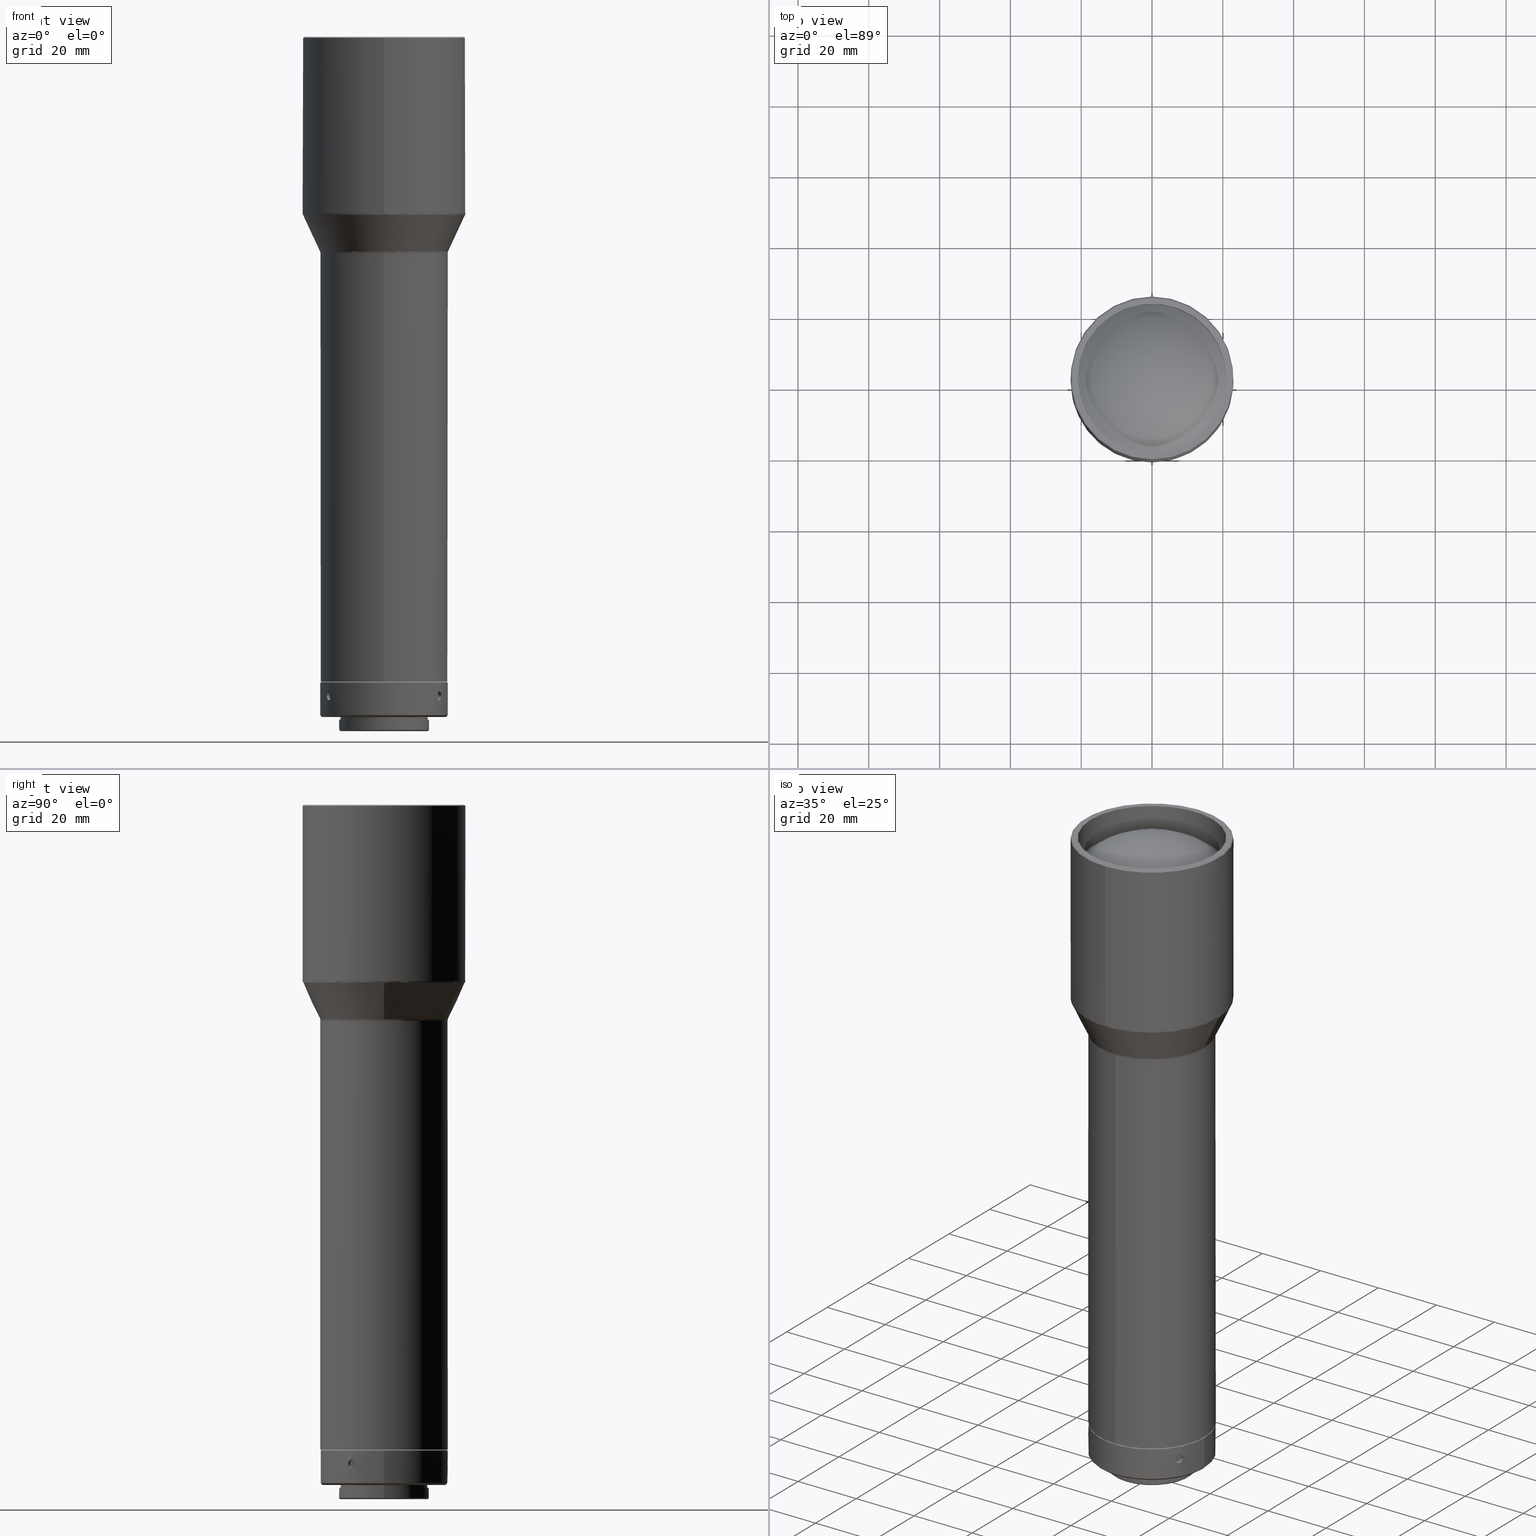
[diagram: canonical four-view strip — front | top / right | iso, engineering-drawing reading convention]
A machine part, canonical four-view strip (front | top / right | iso — engineering-drawing reading convention). The complete STEP part file that produces these views, byte-faithful:
ISO-10303-21;
HEADER;
FILE_DESCRIPTION (( 'STEP AP203' ),
    '1' );
FILE_NAME ('600080.STEP',
    '2024-08-14T02:10:32',
    ( 'Windows User' ),
    ( 'P R C' ),
    'SwSTEP 2.0',
    'SolidWorks 2020',
    '' );
FILE_SCHEMA (( 'CONFIG_CONTROL_DESIGN' ));
ENDSEC;

DATA;
#1 = AXIS2_PLACEMENT_3D ( 'NONE', #789, #464, #285 ) ;
#2 = AXIS2_PLACEMENT_3D ( 'NONE', #89, #523, #760 ) ;
#3 = ADVANCED_FACE ( 'NONE', ( #408, #394 ), #107, .F. ) ;
#4 = ORIENTED_EDGE ( 'NONE', *, *, #291, .T. ) ;
#5 = DIRECTION ( 'NONE',  ( 0.000000000000000000, 0.000000000000000000, -1.000000000000000000 ) ) ;
#6 = ORIENTED_EDGE ( 'NONE', *, *, #775, .F. ) ;
#7 = CC_DESIGN_PERSON_AND_ORGANIZATION_ASSIGNMENT ( #295, #551, ( #190 ) ) ;
#8 = CARTESIAN_POINT ( 'NONE',  ( -23.00000000000007461, -3.830361200870599324E-14, -659.9249152400421963 ) ) ;
#9 = VERTEX_POINT ( 'NONE', #443 ) ;
#10 = DIRECTION ( 'NONE',  ( 1.000000000000000000, 0.000000000000000000, 0.000000000000000000 ) ) ;
#11 = ORIENTED_EDGE ( 'NONE', *, *, #19, .F. ) ;
#12 = CARTESIAN_POINT ( 'NONE',  ( 0.000000000000000000, -5.204170427930421283E-14, -610.0000000000000000 ) ) ;
#13 = VERTEX_POINT ( 'NONE', #702 ) ;
#14 = CARTESIAN_POINT ( 'NONE',  ( 15.42341477952708395, -9.281228519509767239, -797.3013129096971170 ) ) ;
#15 = ORIENTED_EDGE ( 'NONE', *, *, #433, .T. ) ;
#16 = DIRECTION ( 'NONE',  ( -0.4999999999999918954, 0.8660254037844433705, 0.000000000000000000 ) ) ;
#17 = CARTESIAN_POINT ( 'NONE',  ( 0.6292073792629319096, 17.09209115130234125, -797.1758190810363658 ) ) ;
#18 = CARTESIAN_POINT ( 'NONE',  ( 15.19139366244528055, -9.655838794076609943, -797.0846246175249235 ) ) ;
#19 = EDGE_CURVE ( 'NONE', #194, #194, #786, .T. ) ;
#20 = EDGE_LOOP ( 'NONE', ( #43 ) ) ;
#21 = CARTESIAN_POINT ( 'NONE',  ( -22.96826780926344824, -3.825814988380733725E-14, -660.0680499026378811 ) ) ;
#22 = CARTESIAN_POINT ( 'NONE',  ( 1.091753920666898914, 17.06824209668534209, -795.4531000317293774 ) ) ;
#23 = CARTESIAN_POINT ( 'NONE',  ( 14.97256600102901025, -8.267892571246781230, -797.3013119200335268 ) ) ;
#24 = B_SPLINE_CURVE_WITH_KNOTS ( 'NONE', 3,
 ( #739, #426, #686, #195, #215, #325, #401, #204, #505, #35, #444, #753, #712, #591, #520, #638, #757, #392, #767, #257, #772, #649, #449, #707, #159, #335, #23, #138, #440, #762, #510, #84, #642, #658 ),
 .UNSPECIFIED., .T., .F.,
 ( 4, 2, 2, 2, 2, 2, 2, 2, 2, 2, 2, 2, 2, 2, 2, 2, 4 ),
 ( 0.000000000000000000, 0.0004885673970374537767, 0.0009771347940749075534, 0.001465702191112361330, 0.001954269588149815107, 0.002442836985187268883, 0.002931404382224722660, 0.003419971779262176437, 0.003908539176299630213, 0.004397106573337083990, 0.004885673970374537767, 0.005374241367411991543, 0.005862808764449445320, 0.006351376161486899097, 0.006839943558524352873, 0.007328510955561806650, 0.007817078352599260427 ),
 .UNSPECIFIED. ) ;
#25 = DIRECTION ( 'NONE',  ( 0.000000000000000000, -1.000000000000000000, 0.000000000000000000 ) ) ;
#26 = CARTESIAN_POINT ( 'NONE',  ( 22.99999999999993605, -3.575009905206813951E-14, -659.9249152400421963 ) ) ;
#27 = CARTESIAN_POINT ( 'NONE',  ( -1.217381619440085938, 17.05974199413940795, -796.4111680176849859 ) ) ;
#28 = CARTESIAN_POINT ( 'NONE',  ( 15.06470539628273642, -9.852325387835485060, -796.8514481707627510 ) ) ;
#29 = FACE_OUTER_BOUND ( 'NONE', #20, .T. ) ;
#30 = EDGE_CURVE ( 'NONE', #83, #83, #677, .T. ) ;
#31 = CIRCLE ( 'NONE', #225, 21.00000000000000000 ) ;
#32 = CARTESIAN_POINT ( 'NONE',  ( -1.091756721072177250, 17.96697050981529031, -795.4531034048883384 ) ) ;
#33 = AXIS2_PLACEMENT_3D ( 'NONE', #665, #226, #283 ) ;
#34 = PERSON_AND_ORGANIZATION ( #365, #65 ) ;
#35 = CARTESIAN_POINT ( 'NONE',  ( 14.73053777019567079, -8.691990787883581149, -794.8334153498065007 ) ) ;
#36 = ORIENTED_EDGE ( 'NONE', *, *, #354, .F. ) ;
#37 = CARTESIAN_POINT ( 'NONE',  ( -0.3284442371330699717, 17.99763189204313107, -797.3005433772536890 ) ) ;
#38 = CARTESIAN_POINT ( 'NONE',  ( -15.28665282621730270, -7.671034131629056674, -795.3156133243336399 ) ) ;
#39 = FACE_OUTER_BOUND ( 'NONE', #248, .T. ) ;
#40 = DIRECTION ( 'NONE',  ( 1.000000000000000000, 0.000000000000000000, 0.000000000000000000 ) ) ;
#41 = APPLICATION_PROTOCOL_DEFINITION ( 'international standard', 'config_control_design', 1994, #474 ) ;
#42 = FACE_OUTER_BOUND ( 'NONE', #437, .T. ) ;
#43 = ORIENTED_EDGE ( 'NONE', *, *, #494, .T. ) ;
#44 = CARTESIAN_POINT ( 'NONE',  ( 0.3260722864606787064, 17.99768327192970219, -797.3013129096972307 ) ) ;
#45 = AXIS2_PLACEMENT_3D ( 'NONE', #310, #501, #436 ) ;
#46 = APPROVAL_DATE_TIME ( #413, #676 ) ;
#47 = CARTESIAN_POINT ( 'NONE',  ( -15.32750921599467375, -7.588429793138699253, -796.7135436847421488 ) ) ;
#48 = AXIS2_PLACEMENT_3D ( 'NONE', #146, #357, #608 ) ;
#49 = ADVANCED_FACE ( 'NONE', ( #602, #39 ), #768, .T. ) ;
#50 = CARTESIAN_POINT ( 'NONE',  ( 18.03173219073657663, -3.275003417665385028E-14, -670.6544846999100855 ) ) ;
#51 = EDGE_LOOP ( 'NONE', ( #750 ) ) ;
#52 = CARTESIAN_POINT ( 'NONE',  ( 0.7665048592950628459, 17.98405222760584721, -797.0846246175249235 ) ) ;
#53 = PERSON_AND_ORGANIZATION ( #365, #65 ) ;
#54 = CARTESIAN_POINT ( 'NONE',  ( -16.17582393315551670, -7.895740629197049110, -795.9183287607346529 ) ) ;
#55 = CARTESIAN_POINT ( 'NONE',  ( -7.702630993699205639E-31, -1.295151956456359438E-32, -802.0835279999998875 ) ) ;
#56 = DESIGN_CONTEXT ( 'detailed design', #474, 'design' ) ;
#57 = CARTESIAN_POINT ( 'NONE',  ( -1.091982471847275482, 17.06822720015441419, -795.4535137100061775 ) ) ;
#58 = CARTESIAN_POINT ( 'NONE',  ( -15.06517510034525209, -9.851589683955904064, -796.8521601668022640 ) ) ;
#59 = FACE_OUTER_BOUND ( 'NONE', #403, .T. ) ;
#60 = ADVANCED_FACE ( 'NONE', ( #411, #29 ), #773, .T. ) ;
#61 = CARTESIAN_POINT ( 'NONE',  ( -15.42218430790377148, -9.283256999105457652, -797.3005433772533479 ) ) ;
#62 = AXIS2_PLACEMENT_3D ( 'NONE', #597, #269, #655 ) ;
#63 = CARTESIAN_POINT ( 'NONE',  ( -18.00000000000006395, -36.00000000000001421, -670.7976193625059977 ) ) ;
#64 = CARTESIAN_POINT ( 'NONE',  ( -7.702630993699205639E-31, -1.295151956456359438E-32, -792.0835279999998875 ) ) ;
#65 = ORGANIZATION ( 'δָ��', 'δָ��', '' ) ;
#66 = APPROVAL_ROLE ( '' ) ;
#67 = CARTESIAN_POINT ( 'NONE',  ( -7.285838599102589797E-14, -5.290196298571356543E-14, -610.0000000000000000 ) ) ;
#68 = ADVANCED_FACE ( 'NONE', ( #461 ), #98, .F. ) ;
#69 = EDGE_LOOP ( 'NONE', ( #309 ) ) ;
#70 = DIRECTION ( 'NONE',  ( 1.000000000000000000, 0.000000000000000000, 0.000000000000000000 ) ) ;
#71 = AXIS2_PLACEMENT_3D ( 'NONE', #343, #598, #169 ) ;
#72 = EDGE_LOOP ( 'NONE', ( #274 ) ) ;
#73 = CARTESIAN_POINT ( 'NONE',  ( -23.00000000000007816, 45.99999999999995737, -659.7783053373570965 ) ) ;
#74 = CARTESIAN_POINT ( 'NONE',  ( -1.091753058909800567, 17.06824215238098930, -796.7139574146851828 ) ) ;
#75 = CARTESIAN_POINT ( 'NONE',  ( -18.03173219073673295, -3.475195860185696381E-14, -670.6544846999100855 ) ) ;
#76 = ORIENTED_EDGE ( 'NONE', *, *, #374, .F. ) ;
#77 = DIRECTION ( 'NONE',  ( -5.551115123125790098E-17, 3.053113317719188375E-16, -1.000000000000000000 ) ) ;
#78 = CARTESIAN_POINT ( 'NONE',  ( -7.228811143606403814E-14, -23.00000000000008527, -610.2999999999999545 ) ) ;
#79 = CARTESIAN_POINT ( 'NONE',  ( 15.95885680708792798, -8.326356316898312571, -797.0826980424842532 ) ) ;
#80 = ORIENTED_EDGE ( 'NONE', *, *, #694, .T. ) ;
#81 = ADVANCED_FACE ( 'NONE', ( #211, #456 ), #783, .T. ) ;
#82 = PLANE ( 'NONE',  #393 ) ;
#83 = VERTEX_POINT ( 'NONE', #90 ) ;
#84 = CARTESIAN_POINT ( 'NONE',  ( 15.38286075865293689, -7.475587588534422068, -796.4111680176849859 ) ) ;
#85 = AXIS2_PLACEMENT_3D ( 'NONE', #55, #242, #490 ) ;
#86 = MANIFOLD_SOLID_BREP ( '���1', #104 ) ;
#87 = EDGE_LOOP ( 'NONE', ( #110 ) ) ;
#88 = AXIS2_PLACEMENT_3D ( 'NONE', #217, #298, #554 ) ;
#89 = CARTESIAN_POINT ( 'NONE',  ( -8.237912435022365134E-14, 3.322666536485011173E-15, -792.0835279999998875 ) ) ;
#90 = CARTESIAN_POINT ( 'NONE',  ( -7.565454241810714803E-14, -18.00000000000005684, -670.9442292651909838 ) ) ;
#91 = CARTESIAN_POINT ( 'NONE',  ( 15.42218411498788377, -9.283257321960583397, -794.8665126990362069 ) ) ;
#92 = EDGE_LOOP ( 'NONE', ( #441 ) ) ;
#93 = CARTESIAN_POINT ( 'NONE',  ( -22.90630778703676995, 45.81261557407333385, -660.2009235990977913 ) ) ;
#94 = VERTEX_POINT ( 'NONE', #334 ) ;
#95 = CARTESIAN_POINT ( 'NONE',  ( 15.26487564935874808, -9.539717018441056240, -794.9912321845228007 ) ) ;
#96 = ADVANCED_FACE ( 'NONE', ( #332, #124 ), #483, .T. ) ;
#97 =( BOUNDED_SURFACE ( )  B_SPLINE_SURFACE ( 3, 3, ( 
 ( #751, #93, #705, #333, #580, #585, #507 ),
 ( #21, #136, #266, #765, #701, #193, #769 ),
 ( #208, #438, #714, #26, #197, #631, #8 ),
 ( #141, #73, #575, #636, #381, #323, #518 ) ),
 .UNSPECIFIED., .F., .T., .F. ) 
 B_SPLINE_SURFACE_WITH_KNOTS ( ( 4, 4 ),
 ( 4, 3, 4 ),
 ( 0.000000000000000000, 1.000000000000000000 ),
 ( 0.000000000000000000, 0.5000000000000000000, 1.000000000000000000 ),
 .UNSPECIFIED. ) 
 GEOMETRIC_REPRESENTATION_ITEM ( )  RATIONAL_B_SPLINE_SURFACE ( (
 ( 1.000000000000000000, 0.3333333333333333148, 0.3333333333333333148, 1.000000000000000000, 0.3333333333333333148, 0.3333333333333333148, 1.000000000000000000),
 ( 0.9841973380799622362, 0.3280657793599873751, 0.3280657793599873751, 0.9841973380799622362, 0.3280657793599873751, 0.3280657793599873751, 0.9841973380799622362),
 ( 0.9841973380799622362, 0.3280657793599873751, 0.3280657793599873751, 0.9841973380799622362, 0.3280657793599873751, 0.3280657793599873751, 0.9841973380799622362),
 ( 1.000000000000000000, 0.3333333333333333148, 0.3333333333333333148, 1.000000000000000000, 0.3333333333333333148, 0.3333333333333333148, 1.000000000000000000) ) ) 
 REPRESENTATION_ITEM ( '' )  SURFACE ( )  );
#98 = PLANE ( 'NONE',  #302 ) ;
#99 = DIRECTION ( 'NONE',  ( -7.281398655528297692E-31, 2.413528314402513498E-15, -1.000000000000000000 ) ) ;
#100 = COORDINATED_UNIVERSAL_TIME_OFFSET ( 8, 0, .AHEAD. ) ;
#101 = CARTESIAN_POINT ( 'NONE',  ( 15.01384693159024231, -9.929166768100163409, -795.4535216262730728 ) ) ;
#102 = APPLICATION_CONTEXT ( 'configuration controlled 3d designs of mechanical parts and assemblies' ) ;
#103 = ORIENTED_EDGE ( 'NONE', *, *, #433, .F. ) ;
#104 = CLOSED_SHELL ( 'NONE', ( #312, #126, #511, #96, #763, #583, #342, #49, #81, #179, #389, #522, #634, #139, #664, #539, #599, #223, #60, #307, #425, #367, #68, #3, #624 ) ) ;
#105 = CARTESIAN_POINT ( 'NONE',  ( 0.000000000000000000, -5.204170427930421283E-14, -610.0000000000000000 ) ) ;
#106 = CARTESIAN_POINT ( 'NONE',  ( -15.18131065565276572, -7.877434895561345130, -797.0826937157838756 ) ) ;
#107 = CYLINDRICAL_SURFACE ( 'NONE', #407, 21.00000000000000000 ) ;
#108 = CARTESIAN_POINT ( 'NONE',  ( -0.1622122895000155107, 18.00000780388930721, -794.8334156239673121 ) ) ;
#109 = CARTESIAN_POINT ( 'NONE',  ( -14.97370788293218880, -8.265806318028593225, -797.3005401582452123 ) ) ;
#110 = ORIENTED_EDGE ( 'NONE', *, *, #402, .F. ) ;
#111 = CARTESIAN_POINT ( 'NONE',  ( -0.7665056236648906118, 17.98405219532856592, -795.0824319321260418 ) ) ;
#112 = EDGE_CURVE ( 'NONE', #133, #133, #696, .T. ) ;
#113 = CARTESIAN_POINT ( 'NONE',  ( -14.73053787205714293, -8.691990611433746849, -797.3336406500524163 ) ) ;
#114 = PRODUCT_RELATED_PRODUCT_CATEGORY ( 'detail', '', ( #546 ) ) ;
#115 = DIRECTION ( 'NONE',  ( -5.551115123125790098E-17, 3.053113317719188375E-16, -1.000000000000000000 ) ) ;
#116 = CARTESIAN_POINT ( 'NONE',  ( -1.091986416381327096, 17.96695628302231640, -796.7135356652778455 ) ) ;
#117 = PERSON_AND_ORGANIZATION_ROLE ( 'creator' ) ;
#118 = CARTESIAN_POINT ( 'NONE',  ( -14.72965772502346127, -8.693482050333498634, -794.8336412498073287 ) ) ;
#119 = AXIS2_PLACEMENT_3D ( 'NONE', #697, #447, #16 ) ;
#120 = CARTESIAN_POINT ( 'NONE',  ( 18.03173219073658728, -36.06346438147336642, -670.6544846999104266 ) ) ;
#121 = CARTESIAN_POINT ( 'NONE',  ( 0.1622159466695790586, 17.10301531433740863, -794.8334153498065007 ) ) ;
#122 = CARTESIAN_POINT ( 'NONE',  ( -15.67042028344148719, -8.858020202463205095, -794.8336409727663749 ) ) ;
#123 = CARTESIAN_POINT ( 'NONE',  ( -16.06471677035730394, -8.120254879791547253, -796.8514481707626373 ) ) ;
#124 = FACE_BOUND ( 'NONE', #92, .T. ) ;
#125 = FACE_BOUND ( 'NONE', #206, .T. ) ;
#126 = ADVANCED_FACE ( 'NONE', ( #379, #363 ), #205, .F. ) ;
#127 = COORDINATED_UNIVERSAL_TIME_OFFSET ( 8, 0, .AHEAD. ) ;
#128 = CARTESIAN_POINT ( 'NONE',  ( -7.285838599102589797E-14, -5.290196298571356543E-14, -618.5805314758425766 ) ) ;
#129 = EDGE_LOOP ( 'NONE', ( #512 ) ) ;
#130 = FACE_OUTER_BOUND ( 'NONE', #87, .T. ) ;
#131 = ORIENTED_EDGE ( 'NONE', *, *, #458, .T. ) ;
#132 = DIRECTION ( 'NONE',  ( 0.000000000000000000, 0.000000000000000000, 1.000000000000000000 ) ) ;
#133 = VERTEX_POINT ( 'NONE', #214 ) ;
#134 = FACE_OUTER_BOUND ( 'NONE', #286, .T. ) ;
#135 = ORIENTED_EDGE ( 'NONE', *, *, #354, .T. ) ;
#136 = CARTESIAN_POINT ( 'NONE',  ( -22.96826780926345180, 45.93653561852669753, -660.0680499026376538 ) ) ;
#137 = DIRECTION ( 'NONE',  ( 5.551115123125790098E-17, -3.053113317719188375E-16, 1.000000000000000000 ) ) ;
#138 = CARTESIAN_POINT ( 'NONE',  ( 15.11660873587477028, -8.001494894788223178, -797.1761976189178540 ) ) ;
#139 = ADVANCED_FACE ( 'NONE', ( #679, #134 ), #612, .F. ) ;
#140 = EDGE_LOOP ( 'NONE', ( #135 ) ) ;
#141 = CARTESIAN_POINT ( 'NONE',  ( -23.00000000000007461, -3.834837367334569765E-14, -659.7783053373570965 ) ) ;
#142 = VERTEX_POINT ( 'NONE', #315 ) ;
#143 = CARTESIAN_POINT ( 'NONE',  ( 16.06471715756161345, -8.120254114432439607, -795.3156088980894083 ) ) ;
#144 = ADVANCED_BREP_SHAPE_REPRESENTATION ( '600080', ( #86, #745 ), #646 ) ;
#145 = ORIENTED_EDGE ( 'NONE', *, *, #112, .T. ) ;
#146 = CARTESIAN_POINT ( 'NONE',  ( 0.000000000000000000, -5.204170427930421283E-14, -610.0000000000000000 ) ) ;
#147 = CARTESIAN_POINT ( 'NONE',  ( 0.6288072545325031903, 17.09211460621416379, -794.9908587713531460 ) ) ;
#148 = CARTESIAN_POINT ( 'NONE',  ( 15.06517464280619834, -9.851590384043120707, -795.3148968769148723 ) ) ;
#149 = EDGE_LOOP ( 'NONE', ( #574 ) ) ;
#150 = AXIS2_PLACEMENT_3D ( 'NONE', #710, #77, #260 ) ;
#151 = CARTESIAN_POINT ( 'NONE',  ( -7.702630993699205639E-31, -1.295151956456359438E-32, -802.8835279999999557 ) ) ;
#152 = EDGE_CURVE ( 'NONE', #586, #586, #709, .T. ) ;
#153 = CARTESIAN_POINT ( 'NONE',  ( -0.1622157429290477515, 17.10301531432711286, -797.3336406500524163 ) ) ;
#154 = CARTESIAN_POINT ( 'NONE',  ( 14.92582393315537814, -10.06080413865839951, -795.9183287607346529 ) ) ;
#155 = EDGE_LOOP ( 'NONE', ( #168 ) ) ;
#156 = LOCAL_TIME ( 10, 10, 32.00000000000000000, #299 ) ;
#157 = FACE_OUTER_BOUND ( 'NONE', #635, .T. ) ;
#158 = PERSON_AND_ORGANIZATION_ROLE ( 'design_owner' ) ;
#159 = CARTESIAN_POINT ( 'NONE',  ( 14.72965782690100411, -8.693481873897018986, -797.3334147503331906 ) ) ;
#160 = EDGE_LOOP ( 'NONE', ( #692 ) ) ;
#161 = CARTESIAN_POINT ( 'NONE',  ( 0.000000000000000000, -1.203706215242022408E-32, -802.0835279999998875 ) ) ;
#162 = CARTESIAN_POINT ( 'NONE',  ( 1.249999999999991118, 17.95654476785553655, -796.0835279999998875 ) ) ;
#163 = CARTESIAN_POINT ( 'NONE',  ( -15.75062872817974124, -8.714374564439973270, -794.8665126990358658 ) ) ;
#164 = EDGE_LOOP ( 'NONE', ( #131 ) ) ;
#165 = AXIS2_PLACEMENT_3D ( 'NONE', #553, #672, #10 ) ;
#166 = CARTESIAN_POINT ( 'NONE',  ( -0.3260726576621967854, 17.99768326650239914, -794.8657431631306736 ) ) ;
#167 = CARTESIAN_POINT ( 'NONE',  ( -15.06470492706443842, -9.852326105843829396, -795.3156088980896357 ) ) ;
#168 = ORIENTED_EDGE ( 'NONE', *, *, #487, .T. ) ;
#169 = DIRECTION ( 'NONE',  ( 1.000000000000000000, 5.551115123125880077E-17, 0.000000000000000000 ) ) ;
#170 = CALENDAR_DATE ( 2024, 14, 8 ) ;
#171 = CARTESIAN_POINT ( 'NONE',  ( -14.28711288469892438, -9.402370934285805504, -795.3148922700409003 ) ) ;
#172 = CYLINDRICAL_SURFACE ( 'NONE', #258, 1.249999999999991118 ) ;
#173 = CARTESIAN_POINT ( 'NONE',  ( 1.249999999999991562, 17.95654476785554010, -796.2487272392653495 ) ) ;
#174 = B_SPLINE_CURVE_WITH_KNOTS ( 'NONE', 3,
 ( #610, #54, #296, #552, #793, #237, #481, #163, #122, #362, #406, #468, #725, #167, #181, #795, #564, #687, #749, #561, #58, #364, #618, #61, #691, #434, #802, #243, #690, #123, #424, #562, #376, #743 ),
 .UNSPECIFIED., .T., .F.,
 ( 4, 2, 2, 2, 2, 2, 2, 2, 2, 2, 2, 2, 2, 2, 2, 2, 4 ),
 ( 0.000000000000000000, 0.0004885519476059286669, 0.0009771038952118573338, 0.001465655842817786001, 0.001954207790423714668, 0.002442759738029643551, 0.002931311685635572001, 0.003419863633241500452, 0.003908415580847429335, 0.004396967528453358219, 0.004885519476059287103, 0.005374071423665215119, 0.005862623371271144003, 0.006351175318877072887, 0.006839727266483000903, 0.007328279214088929787, 0.007816831161694858671 ),
 .UNSPECIFIED. ) ;
#175 = CYLINDRICAL_SURFACE ( 'NONE', #540, 18.00000000000002132 ) ;
#176 = CARTESIAN_POINT ( 'NONE',  ( -18.09369221296347874, -36.18738442592685089, -670.5216110034501753 ) ) ;
#177 = CARTESIAN_POINT ( 'NONE',  ( -0.1639474404212649117, 17.10299880408676998, -794.8336412498073287 ) ) ;
#178 = CARTESIAN_POINT ( 'NONE',  ( 14.92582393315539413, -10.06080413865837997, -796.0835280000000012 ) ) ;
#179 = ADVANCED_FACE ( 'NONE', ( #790, #731 ), #172, .F. ) ;
#180 = DIRECTION ( 'NONE',  ( 0.000000000000000000, 1.000000000000000000, 0.000000000000000000 ) ) ;
#181 = CARTESIAN_POINT ( 'NONE',  ( -15.01397453000996585, -9.928974310108319656, -795.4531034048875426 ) ) ;
#182 = CARTESIAN_POINT ( 'NONE',  ( 17.99999999999992539, -36.00000000000002132, -670.9442292651910975 ) ) ;
#183 = DIRECTION ( 'NONE',  ( -1.000000000000000000, 3.469446951953614189E-18, 0.000000000000000000 ) ) ;
#184 = CARTESIAN_POINT ( 'NONE',  ( -18.00000000000007461, 35.99999999999995026, -670.9442292651910975 ) ) ;
#185 = DIRECTION ( 'NONE',  ( 0.000000000000000000, -1.000000000000000000, -8.741913579725643877E-15 ) ) ;
#186 = CIRCLE ( 'NONE', #420, 18.00000000000000355 ) ;
#187 = CC_DESIGN_PERSON_AND_ORGANIZATION_ASSIGNMENT ( #661, #158, ( #546 ) ) ;
#188 = DATE_AND_TIME ( #626, #156 ) ;
#189 = CARTESIAN_POINT ( 'NONE',  ( -7.702630993699205639E-31, -1.295151956456359438E-32, -792.3835279999998420 ) ) ;
#190 = PRODUCT_DEFINITION_FORMATION_WITH_SPECIFIED_SOURCE ( '�κ�', '', #546, .NOT_KNOWN. ) ;
#191 = EDGE_LOOP ( 'NONE', ( #499 ) ) ;
#192 = ORIENTED_EDGE ( 'NONE', *, *, #152, .T. ) ;
#193 = CARTESIAN_POINT ( 'NONE',  ( -22.96826780926344114, -45.93653561852677569, -660.0680499026376538 ) ) ;
#194 = VERTEX_POINT ( 'NONE', #78 ) ;
#195 = CARTESIAN_POINT ( 'NONE',  ( 15.32750958882187398, -7.588429038970219587, -795.4535137100061775 ) ) ;
#196 = ORIENTED_EDGE ( 'NONE', *, *, #251, .F. ) ;
#197 = CARTESIAN_POINT ( 'NONE',  ( 22.99999999999993250, -46.00000000000004263, -659.9249152400421963 ) ) ;
#198 = CARTESIAN_POINT ( 'NONE',  ( -1.000015056915099843, 17.07414680597957357, -796.8514438299906715 ) ) ;
#199 = CARTESIAN_POINT ( 'NONE',  ( 14.92582393315539413, -10.06080413865837997, -796.0835280000000012 ) ) ;
#200 = CC_DESIGN_APPROVAL ( #244, ( #652 ) ) ;
#201 = ORIENTED_EDGE ( 'NONE', *, *, #30, .F. ) ;
#202 = FACE_OUTER_BOUND ( 'NONE', #72, .T. ) ;
#203 = CARTESIAN_POINT ( 'NONE',  ( 0.000000000000000000, -12.40000000000003055, -806.0835279999998875 ) ) ;
#204 = CARTESIAN_POINT ( 'NONE',  ( 14.97370808044183121, -8.265805963104595477, -794.8665159241520541 ) ) ;
#205 =( BOUNDED_SURFACE ( )  B_SPLINE_SURFACE ( 3, 3, ( 
 ( #742, #607, #184, #797, #428, #182, #801 ),
 ( #616, #366, #735, #619, #63, #238, #292 ),
 ( #50, #304, #548, #75, #559, #120, #633 ),
 ( #419, #359, #316, #684, #176, #568, #737 ) ),
 .UNSPECIFIED., .F., .T., .T. ) 
 B_SPLINE_SURFACE_WITH_KNOTS ( ( 4, 4 ),
 ( 4, 3, 4 ),
 ( 0.000000000000000000, 1.000000000000000000 ),
 ( 0.000000000000000000, 0.5000000000000000000, 1.000000000000000000 ),
 .UNSPECIFIED. ) 
 GEOMETRIC_REPRESENTATION_ITEM ( )  RATIONAL_B_SPLINE_SURFACE ( (
 ( 1.000000000000000000, 0.3333333333333333148, 0.3333333333333333148, 1.000000000000000000, 0.3333333333333333148, 0.3333333333333333148, 1.000000000000000000),
 ( 0.9841973380799446947, 0.3280657793599815464, 0.3280657793599815464, 0.9841973380799446947, 0.3280657793599815464, 0.3280657793599815464, 0.9841973380799446947),
 ( 0.9841973380799446947, 0.3280657793599815464, 0.3280657793599815464, 0.9841973380799446947, 0.3280657793599815464, 0.3280657793599815464, 0.9841973380799446947),
 ( 1.000000000000000000, 0.3333333333333333148, 0.3333333333333333148, 1.000000000000000000, 0.3333333333333333148, 0.3333333333333333148, 1.000000000000000000) ) ) 
 REPRESENTATION_ITEM ( '' )  SURFACE ( )  );
#206 = EDGE_LOOP ( 'NONE', ( #388 ) ) ;
#207 = CC_DESIGN_PERSON_AND_ORGANIZATION_ASSIGNMENT ( #657, #221, ( #748 ) ) ;
#208 = CARTESIAN_POINT ( 'NONE',  ( -23.00000000000007461, -3.830361200870599324E-14, -659.9249152400421963 ) ) ;
#209 = CARTESIAN_POINT ( 'NONE',  ( -1.249999999999991118, 17.05726681555331581, -796.0835280000000012 ) ) ;
#210 = CARTESIAN_POINT ( 'NONE',  ( 14.94412286735163242, -10.03380008369035714, -795.7562289706281717 ) ) ;
#211 = FACE_OUTER_BOUND ( 'NONE', #51, .T. ) ;
#212 = CIRCLE ( 'NONE', #71, 22.90630778703665982 ) ;
#213 = FACE_OUTER_BOUND ( 'NONE', #713, .T. ) ;
#214 = CARTESIAN_POINT ( 'NONE',  ( -7.285838599102589797E-14, 22.69999999999999574, -610.0000000000000000 ) ) ;
#215 = CARTESIAN_POINT ( 'NONE',  ( 15.28624852724543715, -7.671817237742272866, -795.3148922700409003 ) ) ;
#216 = CARTESIAN_POINT ( 'NONE',  ( -7.702630993699205639E-31, -1.295151956456359438E-32, -792.0835279999998875 ) ) ;
#217 = CARTESIAN_POINT ( 'NONE',  ( 0.000000000000000000, -1.203706215241963017E-32, -792.3835279999998420 ) ) ;
#218 = DIRECTION ( 'NONE',  ( 5.551115123125790098E-17, -3.053113317719188375E-16, 1.000000000000000000 ) ) ;
#219 = ORIENTED_EDGE ( 'NONE', *, *, #570, .T. ) ;
#220 = CARTESIAN_POINT ( 'NONE',  ( -1.217386932848439018, 17.95889559784533773, -795.7559047959091458 ) ) ;
#221 = PERSON_AND_ORGANIZATION_ROLE ( 'creator' ) ;
#222 = CARTESIAN_POINT ( 'NONE',  ( -14.14702638139856816, -9.611165162507072424, -796.2487328839886231 ) ) ;
#223 = ADVANCED_FACE ( 'NONE', ( #241, #59 ), #415, .F. ) ;
#224 = DIRECTION ( 'NONE',  ( 1.000000000000000000, 0.000000000000000000, 0.000000000000000000 ) ) ;
#225 = AXIS2_PLACEMENT_3D ( 'NONE', #67, #432, #798 ) ;
#226 = DIRECTION ( 'NONE',  ( 4.665676044949142225E-17, 1.934749774458438864E-17, 1.000000000000000000 ) ) ;
#227 = PERSON_AND_ORGANIZATION ( #365, #65 ) ;
#228 = CARTESIAN_POINT ( 'NONE',  ( -14.48758106887773955, -9.090955762222151293, -794.9912373040098146 ) ) ;
#229 = CARTESIAN_POINT ( 'NONE',  ( -7.565454241810714803E-14, -3.366253409015581107E-14, -670.9442292651909838 ) ) ;
#230 = DIRECTION ( 'NONE',  ( 0.000000000000000000, -1.000000000000000000, 0.000000000000000000 ) ) ;
#231 = PERSON_AND_ORGANIZATION ( #365, #65 ) ;
#232 = CARTESIAN_POINT ( 'NONE',  ( 4.406197628981012120E-17, 12.69999999999999751, -802.8835279999999557 ) ) ;
#233 = DIRECTION ( 'NONE',  ( 0.000000000000000000, 0.000000000000000000, 1.000000000000000000 ) ) ;
#234 = EDGE_CURVE ( 'NONE', #391, #391, #24, .T. ) ;
#235 = FACE_BOUND ( 'NONE', #446, .T. ) ;
#236 = CARTESIAN_POINT ( 'NONE',  ( 22.90630778703658166, -3.567103153498748458E-14, -660.2009235990977913 ) ) ;
#237 = CARTESIAN_POINT ( 'NONE',  ( -15.95885716155516576, -8.326355637990779712, -795.0843585139830338 ) ) ;
#238 = CARTESIAN_POINT ( 'NONE',  ( 17.99999999999992184, -36.00000000000002132, -670.7976193625059977 ) ) ;
#239 = CARTESIAN_POINT ( 'NONE',  ( -0.3284560934195183135, 17.10051456806723991, -794.8665159241520541 ) ) ;
#240 = CARTESIAN_POINT ( 'NONE',  ( 0.000000000000000000, -1.203706215242106568E-32, -805.7835279999999329 ) ) ;
#241 = FACE_BOUND ( 'NONE', #531, .T. ) ;
#242 = DIRECTION ( 'NONE',  ( -0.000000000000000000, -0.000000000000000000, -1.000000000000000000 ) ) ;
#243 = CARTESIAN_POINT ( 'NONE',  ( -15.89389197149334088, -8.450273622267832963, -797.1762040156605735 ) ) ;
#244 = APPROVAL ( #614, 'δָ��' ) ;
#245 = FACE_OUTER_BOUND ( 'NONE', #327, .T. ) ;
#246 = AXIS2_PLACEMENT_3D ( 'NONE', #659, #669, #727 ) ;
#247 = CIRCLE ( 'NONE', #454, 12.69999999999999751 ) ;
#248 = EDGE_LOOP ( 'NONE', ( #517 ) ) ;
#249 = DIRECTION ( 'NONE',  ( -0.8660254037844363761, 0.5000000000000041078, 0.000000000000000000 ) ) ;
#250 = EDGE_LOOP ( 'NONE', ( #791 ) ) ;
#251 = EDGE_CURVE ( 'NONE', #324, #324, #455, .T. ) ;
#252 = CYLINDRICAL_SURFACE ( 'NONE', #119, 1.249999999999991562 ) ;
#253 = CARTESIAN_POINT ( 'NONE',  ( 20.99999999999992895, -5.290196298571356543E-14, -610.0000000000000000 ) ) ;
#254 = DIRECTION ( 'NONE',  ( -7.281398655528297692E-31, 2.413528314402513498E-15, -1.000000000000000000 ) ) ;
#255 = ORIENTED_EDGE ( 'NONE', *, *, #799, .F. ) ;
#256 = CARTESIAN_POINT ( 'NONE',  ( -14.14702638139856639, -9.611165162507070647, -796.0835279999998875 ) ) ;
#257 = CARTESIAN_POINT ( 'NONE',  ( 14.23552758369018356, -9.479797461222077004, -796.7135436847421488 ) ) ;
#258 = AXIS2_PLACEMENT_3D ( 'NONE', #297, #555, #482 ) ;
#259 = ORIENTED_EDGE ( 'NONE', *, *, #741, .F. ) ;
#260 = DIRECTION ( 'NONE',  ( -1.000000000000000000, -5.551115123125787632E-17, 0.000000000000000000 ) ) ;
#261 = CARTESIAN_POINT ( 'NONE',  ( -0.3260779980542259926, 17.10056880235369903, -797.3013119200335268 ) ) ;
#262 = CARTESIAN_POINT ( 'NONE',  ( 16.16158696957451824, -7.925090474844783905, -796.4108288894951784 ) ) ;
#263 = EDGE_CURVE ( 'NONE', #572, #572, #498, .T. ) ;
#264 = CC_DESIGN_SECURITY_CLASSIFICATION ( #652, ( #190 ) ) ;
#265 = ORIENTED_EDGE ( 'NONE', *, *, #152, .F. ) ;
#266 = CARTESIAN_POINT ( 'NONE',  ( 22.96826780926329548, 45.93653561852670464, -660.0680499026376538 ) ) ;
#267 = VERTEX_POINT ( 'NONE', #386 ) ;
#268 = CARTESIAN_POINT ( 'NONE',  ( 16.16155327807074116, -7.925159788840832498, -795.7559047959089185 ) ) ;
#269 = DIRECTION ( 'NONE',  ( -5.551115123125790098E-17, 3.053113317719188375E-16, -1.000000000000000000 ) ) ;
#270 = CARTESIAN_POINT ( 'NONE',  ( -7.702630993699205639E-31, -1.295151956456359438E-32, -802.8835279999999557 ) ) ;
#271 = VERTEX_POINT ( 'NONE', #648 ) ;
#272 = CARTESIAN_POINT ( 'NONE',  ( 15.01397497146086124, -9.928973643487818634, -796.7139539346064794 ) ) ;
#273 = CIRCLE ( 'NONE', #1, 12.40000000000003233 ) ;
#274 = ORIENTED_EDGE ( 'NONE', *, *, #263, .T. ) ;
#275 = AXIS2_PLACEMENT_3D ( 'NONE', #151, #755, #571 ) ;
#276 = CARTESIAN_POINT ( 'NONE',  ( -0.6287950393457110154, 17.98965100100358683, -794.9908523457097544 ) ) ;
#277 = CARTESIAN_POINT ( 'NONE',  ( -15.11660908064286168, -8.001494246597847138, -794.9908587713531460 ) ) ;
#278 = EDGE_LOOP ( 'NONE', ( #628 ) ) ;
#279 = CARTESIAN_POINT ( 'NONE',  ( 1.091987193791646327, 17.96695623533830144, -795.4535216262730728 ) ) ;
#280 = VERTEX_POINT ( 'NONE', #463 ) ;
#281 = CARTESIAN_POINT ( 'NONE',  ( -7.227145809069466332E-14, -5.226949789092443910E-14, -610.0000000000000000 ) ) ;
#282 = DIRECTION ( 'NONE',  ( 0.000000000000000000, -1.000000000000000000, 0.000000000000000000 ) ) ;
#283 = DIRECTION ( 'NONE',  ( -0.3830490080632378835, 0.9237280213470681067, 0.000000000000000000 ) ) ;
#284 = COORDINATED_UNIVERSAL_TIME_OFFSET ( 8, 0, .AHEAD. ) ;
#285 = DIRECTION ( 'NONE',  ( 0.000000000000000000, -1.000000000000000000, 0.000000000000000000 ) ) ;
#286 = EDGE_LOOP ( 'NONE', ( #563 ) ) ;
#287 = CIRCLE ( 'NONE', #45, 17.70000000000001350 ) ;
#288 = CARTESIAN_POINT ( 'NONE',  ( 1.000011374074571302, 17.97258026762709804, -796.8514481707624100 ) ) ;
#289 = VERTEX_POINT ( 'NONE', #724 ) ;
#290 = CARTESIAN_POINT ( 'NONE',  ( -14.89360506358490710, -8.409516930199984586, -797.3334147503331906 ) ) ;
#291 = EDGE_CURVE ( 'NONE', #515, #515, #273, .T. ) ;
#292 = CARTESIAN_POINT ( 'NONE',  ( 17.99999999999992184, -3.270809503263293769E-14, -670.7976193625058841 ) ) ;
#293 = EDGE_LOOP ( 'NONE', ( #473 ) ) ;
#294 = CARTESIAN_POINT ( 'NONE',  ( -0.7685923121488421605, 17.98395356874551609, -797.0826980424836847 ) ) ;
#295 = PERSON_AND_ORGANIZATION ( #365, #65 ) ;
#296 = CARTESIAN_POINT ( 'NONE',  ( -16.16158720264612825, -7.925089998557205639, -795.7562289706281717 ) ) ;
#297 = CARTESIAN_POINT ( 'NONE',  ( -7.702630993699205639E-31, -1.295151956456359438E-32, -796.0835279999998875 ) ) ;
#298 = DIRECTION ( 'NONE',  ( 0.000000000000000000, 3.083952846180993633E-15, -1.000000000000000000 ) ) ;
#299 = COORDINATED_UNIVERSAL_TIME_OFFSET ( 8, 0, .AHEAD. ) ;
#300 = FACE_BOUND ( 'NONE', #293, .T. ) ;
#301 = CARTESIAN_POINT ( 'NONE',  ( -7.459310946700270506E-14, -3.694258705070339687E-14, -660.2009235990977913 ) ) ;
#302 = AXIS2_PLACEMENT_3D ( 'NONE', #718, #787, #469 ) ;
#303 = DIRECTION ( 'NONE',  ( 1.000000000000000000, 0.000000000000000000, 0.000000000000000000 ) ) ;
#304 = CARTESIAN_POINT ( 'NONE',  ( 18.03173219073658018, 36.06346438147328115, -670.6544846999104266 ) ) ;
#305 = EDGE_LOOP ( 'NONE', ( #11 ) ) ;
#306 = FACE_OUTER_BOUND ( 'NONE', #502, .T. ) ;
#307 = ADVANCED_FACE ( 'NONE', ( #42, #682 ), #414, .F. ) ;
#308 = APPROVAL_DATE_TIME ( #188, #244 ) ;
#309 = ORIENTED_EDGE ( 'NONE', *, *, #570, .F. ) ;
#310 = CARTESIAN_POINT ( 'NONE',  ( 0.000000000000000000, -9.251858538541962086E-16, -792.0835279999998875 ) ) ;
#311 = AXIS2_PLACEMENT_3D ( 'NONE', #423, #115, #488 ) ;
#312 = ADVANCED_FACE ( 'NONE', ( #353, #478 ), #175, .T. ) ;
#313 = EDGE_LOOP ( 'NONE', ( #758 ) ) ;
#314 = DIRECTION ( 'NONE',  ( -0.000000000000000000, -0.000000000000000000, -1.000000000000000000 ) ) ;
#315 = CARTESIAN_POINT ( 'NONE',  ( 0.000000000000000000, 17.70000000000001350, -792.0835279999998875 ) ) ;
#316 = CARTESIAN_POINT ( 'NONE',  ( -18.09369221296348584, 36.18738442592676563, -670.5216110034501753 ) ) ;
#317 = ORIENTED_EDGE ( 'NONE', *, *, #251, .T. ) ;
#318 = DIRECTION ( 'NONE',  ( 1.000000000000000000, 0.000000000000000000, 0.000000000000000000 ) ) ;
#319 = CARTESIAN_POINT ( 'NONE',  ( 1.091981632304372063, 17.06822725436084909, -796.7135436847421488 ) ) ;
#320 = CARTESIAN_POINT ( 'NONE',  ( 15.75062854503694965, -8.714374892937593486, -797.3005433772535753 ) ) ;
#321 = EDGE_LOOP ( 'NONE', ( #588 ) ) ;
#322 = B_SPLINE_CURVE_WITH_KNOTS ( 'NONE', 3,
 ( #728, #532, #673, #279, #782, #594, #412, #670, #589, #108, #166, #276, #111, #466, #32, #220, #723, #480, #733, #116, #404, #294, #528, #37, #603, #550, #44, #660, #52, #288, #543, #788, #173, #774 ),
 .UNSPECIFIED., .T., .F.,
 ( 4, 2, 2, 2, 2, 2, 2, 2, 2, 2, 2, 2, 2, 2, 2, 2, 4 ),
 ( 0.000000000000000000, 0.0004885519476059286669, 0.0009771038952118573338, 0.001465655842817786218, 0.001954207790423714668, 0.002442759738029643118, 0.002931311685635572435, 0.003419863633241500885, 0.003908415580847429335, 0.004396967528453358219, 0.004885519476059286235, 0.005374071423665215119, 0.005862623371271144870, 0.006351175318877072887, 0.006839727266483001770, 0.007328279214088928920, 0.007816831161694856936 ),
 .UNSPECIFIED. ) ;
#323 = CARTESIAN_POINT ( 'NONE',  ( -23.00000000000007461, -46.00000000000004263, -659.7783053373570965 ) ) ;
#324 = VERTEX_POINT ( 'NONE', #577 ) ;
#325 = CARTESIAN_POINT ( 'NONE',  ( 15.18131103684396344, -7.877434161491423836, -795.0843628851532685 ) ) ;
#326 = AXIS2_PLACEMENT_3D ( 'NONE', #189, #738, #183 ) ;
#327 = EDGE_LOOP ( 'NONE', ( #535 ) ) ;
#328 = FACE_OUTER_BOUND ( 'NONE', #164, .T. ) ;
#329 = CARTESIAN_POINT ( 'NONE',  ( -1.249999999999991784, 17.05726681555331936, -796.2487328839886231 ) ) ;
#330 = CARTESIAN_POINT ( 'NONE',  ( 15.95789887597212697, -8.328212755427129466, -795.0824319321259281 ) ) ;
#331 = EDGE_CURVE ( 'NONE', #9, #9, #174, .T. ) ;
#332 = FACE_OUTER_BOUND ( 'NONE', #380, .T. ) ;
#333 = CARTESIAN_POINT ( 'NONE',  ( 22.90630778703661363, -3.567103153498764235E-14, -660.2009235990977913 ) ) ;
#334 = CARTESIAN_POINT ( 'NONE',  ( -8.237912435022365134E-14, -18.00000000000001776, -792.0835279999998875 ) ) ;
#335 = CARTESIAN_POINT ( 'NONE',  ( 14.89275361498606820, -8.411024702893305616, -797.3336406500524163 ) ) ;
#336 = EDGE_LOOP ( 'NONE', ( #569 ) ) ;
#337 = DIRECTION ( 'NONE',  ( 0.000000000000000000, -0.000000000000000000, 1.000000000000000000 ) ) ;
#338 = DATE_AND_TIME ( #537, #668 ) ;
#339 = CARTESIAN_POINT ( 'NONE',  ( 15.89407479287072533, -8.449912178065829949, -797.1758241720305023 ) ) ;
#340 = CIRCLE ( 'NONE', #556, 12.69999999999999751 ) ;
#341 = CIRCLE ( 'NONE', #275, 12.29999999999999893 ) ;
#342 = ADVANCED_FACE ( 'NONE', ( #130, #245, #300, #427, #125 ), #493, .T. ) ;
#343 = CARTESIAN_POINT ( 'NONE',  ( -7.505816915255299447E-14, -3.694258705070344105E-14, -660.2009235990977913 ) ) ;
#344 = CARTESIAN_POINT ( 'NONE',  ( 18.09369221296332242, -3.278716254971344116E-14, -670.5216110034501753 ) ) ;
#345 = CARTESIAN_POINT ( 'NONE',  ( -14.14702638139856461, -9.611165162507070647, -796.0835280000000012 ) ) ;
#346 = DIRECTION ( 'NONE',  ( 1.000000000000000000, 0.000000000000000000, 0.000000000000000000 ) ) ;
#347 = CYLINDRICAL_SURFACE ( 'NONE', #770, 17.10300708112396606 ) ;
#348 = VERTEX_POINT ( 'NONE', #162 ) ;
#349 = CARTESIAN_POINT ( 'NONE',  ( -15.28624812184297355, -7.671818044941888459, -796.8521648570289244 ) ) ;
#350 = CARTESIAN_POINT ( 'NONE',  ( -7.285838599102589797E-14, -5.290196298571356543E-14, -619.0000000000000000 ) ) ;
#351 = CARTESIAN_POINT ( 'NONE',  ( -7.285838599102589797E-14, -5.217790449139287757E-14, -610.2999999999999545 ) ) ;
#352 = APPROVAL_DATE_TIME ( #776, #647 ) ;
#353 = FACE_OUTER_BOUND ( 'NONE', #278, .T. ) ;
#354 = EDGE_CURVE ( 'NONE', #452, #452, #726, .T. ) ;
#355 = CARTESIAN_POINT ( 'NONE',  ( -7.285838599102589797E-14, -5.290196298571355281E-14, -610.0000000000000000 ) ) ;
#356 = CIRCLE ( 'NONE', #2, 18.00000000000002132 ) ;
#357 = DIRECTION ( 'NONE',  ( 0.000000000000000000, -2.654057931847504704E-16, 1.000000000000000000 ) ) ;
#358 = CARTESIAN_POINT ( 'NONE',  ( -14.23565477245151989, -9.479606959865620297, -796.7139574146851828 ) ) ;
#359 = CARTESIAN_POINT ( 'NONE',  ( 18.09369221296332952, 36.18738442592678695, -670.5216110034501753 ) ) ;
#360 = PRODUCT_DEFINITION_SHAPE ( 'NONE', 'NONE',  #748 ) ;
#361 = CARTESIAN_POINT ( 'NONE',  ( -1.249999999999990230, 17.05726681555331226, -795.9183231160112655 ) ) ;
#362 = CARTESIAN_POINT ( 'NONE',  ( -15.50735788173646945, -9.140483865457362356, -794.8334156239671984 ) ) ;
#363 = FACE_OUTER_BOUND ( 'NONE', #704, .T. ) ;
#364 = CARTESIAN_POINT ( 'NONE',  ( -15.19026449493897779, -9.657597251847127140, -797.0826980424835710 ) ) ;
#365 = PERSON ( 'δָ��', 'δָ��', 'δָ��', ('δָ��'), ('δָ��'), ('δָ��') ) ;
#366 = CARTESIAN_POINT ( 'NONE',  ( 17.99999999999991829, 35.99999999999995737, -670.7976193625059977 ) ) ;
#367 = ADVANCED_FACE ( 'NONE', ( #497, #620 ), #629, .T. ) ;
#368 = AXIS2_PLACEMENT_3D ( 'NONE', #128, #5, #803 ) ;
#369 = SHAPE_DEFINITION_REPRESENTATION ( #360, #144 ) ;
#370 = FACE_OUTER_BOUND ( 'NONE', #565, .T. ) ;
#371 = FACE_OUTER_BOUND ( 'NONE', #700, .T. ) ;
#372 = ORIENTED_EDGE ( 'NONE', *, *, #112, .F. ) ;
#373 = CYLINDRICAL_SURFACE ( 'NONE', #796, 12.69999999999999751 ) ;
#374 = EDGE_CURVE ( 'NONE', #581, #581, #31, .T. ) ;
#375 = ORIENTED_EDGE ( 'NONE', *, *, #487, .F. ) ;
#376 = CARTESIAN_POINT ( 'NONE',  ( -16.17582393315549893, -7.895740629197107729, -796.2487272392653495 ) ) ;
#377 = AXIS2_PLACEMENT_3D ( 'NONE', #558, #489, #303 ) ;
#378 = CARTESIAN_POINT ( 'NONE',  ( 1.000015981820228328, 17.07414675215190769, -795.3156133243336399 ) ) ;
#379 = FACE_OUTER_BOUND ( 'NONE', #579, .T. ) ;
#380 = EDGE_LOOP ( 'NONE', ( #708 ) ) ;
#381 = CARTESIAN_POINT ( 'NONE',  ( 22.99999999999992895, -46.00000000000004263, -659.7783053373570965 ) ) ;
#382 = DIRECTION ( 'NONE',  ( 1.000000000000000000, 5.551115123125824610E-17, 0.000000000000000000 ) ) ;
#383 = CARTESIAN_POINT ( 'NONE',  ( 16.10583377797241766, -8.037790164337417664, -796.7135356652778455 ) ) ;
#384 = ORIENTED_EDGE ( 'NONE', *, *, #263, .F. ) ;
#385 = CARTESIAN_POINT ( 'NONE',  ( -5.310310000420518341E-14, 14.99999999999993605, -792.0835279999998875 ) ) ;
#386 = CARTESIAN_POINT ( 'NONE',  ( -23.00000000000007461, -3.834837367334569765E-14, -659.7783053373570965 ) ) ;
#387 = CARTESIAN_POINT ( 'NONE',  ( 15.89389229175798235, -8.450273022655030886, -794.9908523457091860 ) ) ;
#388 = ORIENTED_EDGE ( 'NONE', *, *, #331, .T. ) ;
#389 = ADVANCED_FACE ( 'NONE', ( #306, #371 ), #486, .F. ) ;
#390 = CYLINDRICAL_SURFACE ( 'NONE', #48, 17.10300708112396606 ) ;
#391 = VERTEX_POINT ( 'NONE', #761 ) ;
#392 = CARTESIAN_POINT ( 'NONE',  ( 14.14702656583830276, -9.611164891023465273, -796.2487350983469696 ) ) ;
#393 = AXIS2_PLACEMENT_3D ( 'NONE', #385, #503, #645 ) ;
#394 = FACE_OUTER_BOUND ( 'NONE', #336, .T. ) ;
#395 = FACE_OUTER_BOUND ( 'NONE', #191, .T. ) ;
#396 = CARTESIAN_POINT ( 'NONE',  ( 12.29999999999999893, -1.295151956456359438E-32, -802.8835279999999557 ) ) ;
#397 = CARTESIAN_POINT ( 'NONE',  ( 16.06431448413917806, -8.121029507381743784, -796.8521601668026051 ) ) ;
#398 = DIRECTION ( 'NONE',  ( -0.000000000000000000, -0.000000000000000000, 1.000000000000000000 ) ) ;
#399 = DIRECTION ( 'NONE',  ( 0.000000000000000000, -2.654057931847504704E-16, 1.000000000000000000 ) ) ;
#400 = VERTEX_POINT ( 'NONE', #544 ) ;
#401 = CARTESIAN_POINT ( 'NONE',  ( 15.11678916920381788, -8.001135363923474131, -794.9912373040098146 ) ) ;
#402 = EDGE_CURVE ( 'NONE', #13, #13, #688, .T. ) ;
#403 = EDGE_LOOP ( 'NONE', ( #372 ) ) ;
#404 = CARTESIAN_POINT ( 'NONE',  ( -0.9991393837938816747, 17.97261919133772068, -796.8521601668028325 ) ) ;
#405 =( NAMED_UNIT ( * ) PLANE_ANGLE_UNIT ( ) SI_UNIT ( $, .RADIAN. ) );
#406 = CARTESIAN_POINT ( 'NONE',  ( -15.42341458922628483, -9.281228838265834113, -794.8657431631303325 ) ) ;
#407 = AXIS2_PLACEMENT_3D ( 'NONE', #350, #398, #346 ) ;
#408 = FACE_OUTER_BOUND ( 'NONE', #140, .T. ) ;
#409 = FACE_OUTER_BOUND ( 'NONE', #584, .T. ) ;
#410 = CARTESIAN_POINT ( 'NONE',  ( -15.38286099950772545, -7.475587091605414791, -795.7558899403990154 ) ) ;
#411 = FACE_OUTER_BOUND ( 'NONE', #764, .T. ) ;
#412 = CARTESIAN_POINT ( 'NONE',  ( 0.6291994582050496332, 17.98962860717568901, -794.9912321845222323 ) ) ;
#413 = DATE_AND_TIME ( #170, #715 ) ;
#414 = PLANE ( 'NONE',  #576 ) ;
#415 = PLANE ( 'NONE',  #311 ) ;
#416 = FACE_OUTER_BOUND ( 'NONE', #625, .T. ) ;
#417 = DIRECTION ( 'NONE',  ( 0.000000000000000000, 0.000000000000000000, 1.000000000000000000 ) ) ;
#418 = DIRECTION ( 'NONE',  ( 0.000000000000000000, -1.000000000000000000, 0.000000000000000000 ) ) ;
#419 = CARTESIAN_POINT ( 'NONE',  ( 18.09369221296333308, -3.278716254971344747E-14, -670.5216110034501753 ) ) ;
#420 = AXIS2_PLACEMENT_3D ( 'NONE', #462, #470, #40 ) ;
#421 = CARTESIAN_POINT ( 'NONE',  ( -0.9991356425466297875, 17.07418817202813699, -795.3148922700409003 ) ) ;
#422 = CARTESIAN_POINT ( 'NONE',  ( -15.39702652428833218, -7.446101357578888802, -795.9183258550457367 ) ) ;
#423 = CARTESIAN_POINT ( 'NONE',  ( -7.347882562997452106E-14, 21.74999999999997158, -610.0000000000000000 ) ) ;
#424 = CARTESIAN_POINT ( 'NONE',  ( -16.10573089449705719, -8.037996915324866265, -796.7139539346067068 ) ) ;
#425 = ADVANCED_FACE ( 'NONE', ( #685, #370 ), #373, .T. ) ;
#426 = CARTESIAN_POINT ( 'NONE',  ( 15.39702638139843671, -7.446101653046192759, -795.9183231160112655 ) ) ;
#427 = FACE_BOUND ( 'NONE', #695, .T. ) ;
#428 = CARTESIAN_POINT ( 'NONE',  ( -18.00000000000006395, -36.00000000000002132, -670.9442292651910975 ) ) ;
#429 = AXIS2_PLACEMENT_3D ( 'NONE', #301, #233, #479 ) ;
#430 = AXIS2_PLACEMENT_3D ( 'NONE', #229, #527, #25 ) ;
#431 = B_SPLINE_CURVE_WITH_KNOTS ( 'NONE', 3,
 ( #680, #361, #613, #57, #421, #794, #485, #239, #177, #121, #752, #147, #504, #378, #22, #567, #459, #641, #653, #319, #711, #509, #17, #771, #637, #153, #261, #756, #439, #198, #74, #27, #329, #209 ),
 .UNSPECIFIED., .T., .F.,
 ( 4, 2, 2, 2, 2, 2, 2, 2, 2, 2, 2, 2, 2, 2, 2, 2, 4 ),
 ( 0.000000000000000000, 0.0004885673970374529093, 0.0009771347940749058186, 0.001465702191112358728, 0.001954269588149811637, 0.002442836985187264547, 0.002931404382224717456, 0.003419971779262170365, 0.003908539176299623275, 0.004397106573337076184, 0.004885673970374529093, 0.005374241367411982002, 0.005862808764449434912, 0.006351376161486887821, 0.006839943558524340730, 0.007328510955561793640, 0.007817078352599246549 ),
 .UNSPECIFIED. ) ;
#432 = DIRECTION ( 'NONE',  ( 0.000000000000000000, 0.000000000000000000, 1.000000000000000000 ) ) ;
#433 = EDGE_CURVE ( 'NONE', #142, #142, #287, .T. ) ;
#434 = CARTESIAN_POINT ( 'NONE',  ( -15.66957007690071535, -8.859524101807538798, -797.3336403759024051 ) ) ;
#435 = EDGE_LOOP ( 'NONE', ( #265 ) ) ;
#436 = DIRECTION ( 'NONE',  ( 0.000000000000000000, 1.000000000000000000, 0.000000000000000000 ) ) ;
#437 = EDGE_LOOP ( 'NONE', ( #375 ) ) ;
#438 = CARTESIAN_POINT ( 'NONE',  ( -23.00000000000008171, 45.99999999999995737, -659.9249152400421963 ) ) ;
#439 = CARTESIAN_POINT ( 'NONE',  ( -0.7665062072784268876, 17.08622215413351242, -797.0846239345693220 ) ) ;
#440 = CARTESIAN_POINT ( 'NONE',  ( 15.18035554382328023, -7.879297229405252345, -797.0846239345693220 ) ) ;
#441 = ORIENTED_EDGE ( 'NONE', *, *, #799, .T. ) ;
#442 = FACE_OUTER_BOUND ( 'NONE', #69, .T. ) ;
#443 = CARTESIAN_POINT ( 'NONE',  ( -16.17582393315550959, -7.895740629197078420, -796.0835280000001148 ) ) ;
#444 = CARTESIAN_POINT ( 'NONE',  ( 14.64648779719620819, -8.832676575189164936, -794.8657441586157120 ) ) ;
#445 = EDGE_CURVE ( 'NONE', #271, #271, #340, .T. ) ;
#446 = EDGE_LOOP ( 'NONE', ( #103 ) ) ;
#447 = DIRECTION ( 'NONE',  ( 0.8660254037844433705, 0.4999999999999920064, 0.000000000000000000 ) ) ;
#448 = CARTESIAN_POINT ( 'NONE',  ( -21.00000000000007461, -5.290196298571356543E-14, -618.5805314758425766 ) ) ;
#449 = CARTESIAN_POINT ( 'NONE',  ( 14.48758145119554541, -9.090955150341569535, -797.1758190810363658 ) ) ;
#450 = EDGE_LOOP ( 'NONE', ( #259 ) ) ;
#451 = DIRECTION ( 'NONE',  ( 1.000000000000000000, 0.000000000000000000, 0.000000000000000000 ) ) ;
#452 = VERTEX_POINT ( 'NONE', #448 ) ;
#453 = CARTESIAN_POINT ( 'NONE',  ( 16.17582379988434482, -7.895740902226664915, -796.2487292896937561 ) ) ;
#454 = AXIS2_PLACEMENT_3D ( 'NONE', #270, #314, #318 ) ;
#455 = B_SPLINE_CURVE_WITH_KNOTS ( 'NONE', 3,
 ( #199, #154, #210, #101, #148, #516, #95, #91, #703, #578, #525, #387, #330, #143, #582, #268, #699, #453, #262, #383, #397, #79, #339, #320, #587, #573, #14, #654, #18, #28, #272, #460, #717, #178 ),
 .UNSPECIFIED., .T., .F.,
 ( 4, 2, 2, 2, 2, 2, 2, 2, 2, 2, 2, 2, 2, 2, 2, 2, 4 ),
 ( 0.000000000000000000, 0.0004885519476059295343, 0.0009771038952118590686, 0.001465655842817788603, 0.001954207790423718137, 0.002442759738029644852, 0.002931311685635572001, 0.003419863633241498717, 0.003908415580847425866, 0.004396967528453353015, 0.004885519476059279297, 0.005374071423665207313, 0.005862623371271133595, 0.006351175318877060744, 0.006839727266482987025, 0.007328279214088915042, 0.007816831161694841323 ),
 .UNSPECIFIED. ) ;
#456 = FACE_BOUND ( 'NONE', #747, .T. ) ;
#457 = CYLINDRICAL_SURFACE ( 'NONE', #606, 17.10300708112396606 ) ;
#458 = EDGE_CURVE ( 'NONE', #267, #267, #495, .T. ) ;
#459 = CARTESIAN_POINT ( 'NONE',  ( 1.250000327326893146, 17.05726679156597925, -795.9183258550457367 ) ) ;
#460 = CARTESIAN_POINT ( 'NONE',  ( 14.94416663059034001, -10.03373538488430405, -796.4111530172557423 ) ) ;
#461 = FACE_OUTER_BOUND ( 'NONE', #321, .T. ) ;
#462 = CARTESIAN_POINT ( 'NONE',  ( -7.702630993699205639E-31, -1.295151956456359438E-32, -801.5835279999998875 ) ) ;
#463 = CARTESIAN_POINT ( 'NONE',  ( 18.00000000000000355, -1.295151956456359438E-32, -801.5835279999998875 ) ) ;
#464 = DIRECTION ( 'NONE',  ( 0.000000000000000000, -4.370956789862822727E-15, 1.000000000000000000 ) ) ;
#465 = ORIENTED_EDGE ( 'NONE', *, *, #445, .T. ) ;
#466 = CARTESIAN_POINT ( 'NONE',  ( -1.000012230497475674, 17.97258022027630275, -795.3156088980902041 ) ) ;
#467 =( NAMED_UNIT ( * ) SI_UNIT ( $, .STERADIAN. ) SOLID_ANGLE_UNIT ( ) );
#468 = CARTESIAN_POINT ( 'NONE',  ( -15.26509725241261251, -9.539377978348502651, -794.9908523457096408 ) ) ;
#469 = DIRECTION ( 'NONE',  ( 1.000000000000000000, 0.000000000000000000, 0.000000000000000000 ) ) ;
#470 = DIRECTION ( 'NONE',  ( 0.000000000000000000, 0.000000000000000000, 1.000000000000000000 ) ) ;
#471 = APPROVAL_ROLE ( '' ) ;
#472 = CARTESIAN_POINT ( 'NONE',  ( -14.64648800297489828, -8.832676231106846743, -797.3013119200335268 ) ) ;
#473 = ORIENTED_EDGE ( 'NONE', *, *, #741, .T. ) ;
#474 = APPLICATION_CONTEXT ( 'configuration controlled 3d designs of mechanical parts and assemblies' ) ;
#475 = CC_DESIGN_DATE_AND_TIME_ASSIGNMENT ( #492, #557, ( #652 ) ) ;
#476 = DIRECTION ( 'NONE',  ( 0.000000000000000000, 1.000000000000000000, 4.827056628805026207E-15 ) ) ;
#477 = APPROVAL_STATUS ( 'not_yet_approved' ) ;
#478 = FACE_OUTER_BOUND ( 'NONE', #754, .T. ) ;
#479 = DIRECTION ( 'NONE',  ( 1.000000000000000000, 0.000000000000000000, 0.000000000000000000 ) ) ;
#480 = CARTESIAN_POINT ( 'NONE',  ( -1.249999696914078529, 17.95654478895411899, -796.2487292896940971 ) ) ;
#481 = CARTESIAN_POINT ( 'NONE',  ( -15.89407510756410780, -8.449911588734558165, -794.9912321845231418 ) ) ;
#482 = DIRECTION ( 'NONE',  ( 1.000000000000000000, -3.469446951953614189E-18, 0.000000000000000000 ) ) ;
#483 = CONICAL_SURFACE ( 'NONE', #429, 22.90630778703665982, 0.4363323129985766102 ) ;
#484 = CIRCLE ( 'NONE', #630, 17.49999999999997513 ) ;
#485 = CARTESIAN_POINT ( 'NONE',  ( -0.6292081003262184336, 17.09209112614570003, -794.9912373040098146 ) ) ;
#486 = CYLINDRICAL_SURFACE ( 'NONE', #592, 1.249999999999991118 ) ;
#487 = EDGE_CURVE ( 'NONE', #706, #706, #247, .T. ) ;
#488 = DIRECTION ( 'NONE',  ( 0.000000000000000000, 1.000000000000000000, 3.053113317719188375E-16 ) ) ;
#489 = DIRECTION ( 'NONE',  ( 0.000000000000000000, 0.000000000000000000, 1.000000000000000000 ) ) ;
#490 = DIRECTION ( 'NONE',  ( 1.000000000000000000, 0.000000000000000000, 0.000000000000000000 ) ) ;
#491 = EDGE_LOOP ( 'NONE', ( #6 ) ) ;
#492 = DATE_AND_TIME ( #622, #800 ) ;
#493 = CYLINDRICAL_SURFACE ( 'NONE', #377, 18.00000000000000355 ) ;
#494 = EDGE_CURVE ( 'NONE', #766, #766, #341, .T. ) ;
#495 = CIRCLE ( 'NONE', #150, 23.00000000000000000 ) ;
#496 = CONICAL_SURFACE ( 'NONE', #678, 23.00000000000001066, 0.7853981633974425058 ) ;
#497 = FACE_OUTER_BOUND ( 'NONE', #129, .T. ) ;
#498 = B_SPLINE_CURVE_WITH_KNOTS ( 'NONE', 3,
 ( #345, #662, #545, #615, #171, #785, #228, #736, #118, #605, #720, #277, #538, #38, #667, #410, #422, #777, #534, #47, #349, #106, #675, #109, #290, #113, #472, #730, #780, #530, #358, #601, #222, #734 ),
 .UNSPECIFIED., .T., .F.,
 ( 4, 2, 2, 2, 2, 2, 2, 2, 2, 2, 2, 2, 2, 2, 2, 2, 4 ),
 ( 0.000000000000000000, 0.0004885673970374538851, 0.0009771347940749077702, 0.001465702191112361764, 0.001954269588149815540, 0.002442836985187269317, 0.002931404382224723527, 0.003419971779262177304, 0.003908539176299631081, 0.004397106573337084857, 0.004885673970374538634, 0.005374241367411992411, 0.005862808764449447055, 0.006351376161486900832, 0.006839943558524354608, 0.007328510955561808385, 0.007817078352599262162 ),
 .UNSPECIFIED. ) ;
#499 = ORIENTED_EDGE ( 'NONE', *, *, #689, .F. ) ;
#500 = APPROVAL_PERSON_ORGANIZATION ( #53, #647, #533 ) ;
#501 = DIRECTION ( 'NONE',  ( -0.000000000000000000, -3.083952846180993633E-15, 1.000000000000000000 ) ) ;
#502 = EDGE_LOOP ( 'NONE', ( #722 ) ) ;
#503 = DIRECTION ( 'NONE',  ( 1.959934087451619736E-16, -1.570284498083896972E-16, -1.000000000000000000 ) ) ;
#504 = CARTESIAN_POINT ( 'NONE',  ( 0.7665070327215527390, 17.08622211744608776, -795.0824326589922748 ) ) ;
#505 = CARTESIAN_POINT ( 'NONE',  ( 14.89360516544461532, -8.409516753753203844, -794.8336412498073287 ) ) ;
#506 = EDGE_LOOP ( 'NONE', ( #145 ) ) ;
#507 = CARTESIAN_POINT ( 'NONE',  ( -22.90630778703676285, -3.821414256641953636E-14, -660.2009235990977913 ) ) ;
#508 = AXIS2_PLACEMENT_3D ( 'NONE', #355, #254, #180 ) ;
#509 = CARTESIAN_POINT ( 'NONE',  ( 0.7685965916120865993, 17.08611813831936388, -797.0826937157838756 ) ) ;
#510 = CARTESIAN_POINT ( 'NONE',  ( 15.32740783136119411, -7.588635192515310379, -796.7139574146851828 ) ) ;
#511 = ADVANCED_FACE ( 'NONE', ( #640, #442 ), #82, .T. ) ;
#512 = ORIENTED_EDGE ( 'NONE', *, *, #445, .F. ) ;
#513 = DIRECTION ( 'NONE',  ( 0.000000000000000000, -1.000000000000000000, 0.000000000000000000 ) ) ;
#514 = LOCAL_TIME ( 10, 10, 32.00000000000000000, #284 ) ;
#515 = VERTEX_POINT ( 'NONE', #203 ) ;
#516 = CARTESIAN_POINT ( 'NONE',  ( 15.19026408422143248, -9.657597898278536874, -795.0843585139831475 ) ) ;
#517 = ORIENTED_EDGE ( 'NONE', *, *, #458, .F. ) ;
#518 = CARTESIAN_POINT ( 'NONE',  ( -23.00000000000007461, -3.834837367334569765E-14, -659.7783053373570965 ) ) ;
#519 = CARTESIAN_POINT ( 'NONE',  ( 12.69999999999999751, -1.295151956456359438E-32, -802.8835279999999557 ) ) ;
#520 = CARTESIAN_POINT ( 'NONE',  ( 14.23565429333899601, -9.479607678321540831, -795.4531000317293774 ) ) ;
#521 = ORIENTED_EDGE ( 'NONE', *, *, #234, .T. ) ;
#522 = ADVANCED_FACE ( 'NONE', ( #157, #566 ), #252, .F. ) ;
#523 = DIRECTION ( 'NONE',  ( 5.551115123125790098E-17, -3.053113317719188375E-16, 1.000000000000000000 ) ) ;
#524 = VERTEX_POINT ( 'NONE', #236 ) ;
#525 = CARTESIAN_POINT ( 'NONE',  ( 15.74948724688811730, -8.716454428236506402, -794.8657431631298778 ) ) ;
#526 = CIRCLE ( 'NONE', #541, 18.09369221296339703 ) ;
#527 = DIRECTION ( 'NONE',  ( -5.551115123125790098E-17, 3.053113317719188375E-16, -1.000000000000000000 ) ) ;
#528 = CARTESIAN_POINT ( 'NONE',  ( -0.6291987904827270883, 17.98962862930886075, -797.1758241720310707 ) ) ;
#529 = CC_DESIGN_PERSON_AND_ORGANIZATION_ASSIGNMENT ( #34, #681, ( #652 ) ) ;
#530 = CARTESIAN_POINT ( 'NONE',  ( -14.28663735346577823, -9.403111846445071365, -796.8514438299906715 ) ) ;
#531 = EDGE_LOOP ( 'NONE', ( #76 ) ) ;
#532 = CARTESIAN_POINT ( 'NONE',  ( 1.249999999999990896, 17.95654476785553300, -795.9183287607346529 ) ) ;
#533 = APPROVAL_ROLE ( '' ) ;
#534 = CARTESIAN_POINT ( 'NONE',  ( -15.38289517720257216, -7.475516133284350495, -796.4108398788355316 ) ) ;
#535 = ORIENTED_EDGE ( 'NONE', *, *, #721, .T. ) ;
#536 = SPHERICAL_SURFACE ( 'NONE', #33, 31.20951493132240273 ) ;
#537 = CALENDAR_DATE ( 2024, 14, 8 ) ;
#538 = CARTESIAN_POINT ( 'NONE',  ( -15.18035592477270868, -7.879296496206610101, -795.0824326589922748 ) ) ;
#539 = ADVANCED_FACE ( 'NONE', ( #213 ), #457, .T. ) ;
#540 = AXIS2_PLACEMENT_3D ( 'NONE', #281, #218, #418 ) ;
#541 = AXIS2_PLACEMENT_3D ( 'NONE', #698, #137, #382 ) ;
#542 = DIRECTION ( 'NONE',  ( 5.551115123125790098E-17, -3.053113317719188375E-16, 1.000000000000000000 ) ) ;
#543 = CARTESIAN_POINT ( 'NONE',  ( 1.091755923036194842, 17.96697055881276128, -796.7139539346064794 ) ) ;
#544 = CARTESIAN_POINT ( 'NONE',  ( 17.49999999999997513, -1.203706215242022408E-32, -802.0835279999998875 ) ) ;
#545 = CARTESIAN_POINT ( 'NONE',  ( -14.16543414503268927, -9.584220414705376001, -795.7562181299470012 ) ) ;
#546 = PRODUCT ( '600080', '600080', '', ( #609 ) ) ;
#547 = CC_DESIGN_APPROVAL ( #647, ( #748 ) ) ;
#548 = CARTESIAN_POINT ( 'NONE',  ( -18.03173219073674005, 36.06346438147327405, -670.6544846999104266 ) ) ;
#549 = EDGE_LOOP ( 'NONE', ( #15 ) ) ;
#550 = CARTESIAN_POINT ( 'NONE',  ( 0.1622121008445769341, 18.00000780388026556, -797.3336403759025188 ) ) ;
#551 = PERSON_AND_ORGANIZATION_ROLE ( 'design_supplier' ) ;
#552 = CARTESIAN_POINT ( 'NONE',  ( -16.10583412538212045, -8.037789467238035002, -795.4535216262729591 ) ) ;
#553 = CARTESIAN_POINT ( 'NONE',  ( 4.267419750902868045E-17, 12.29999999999999893, -802.0835279999998875 ) ) ;
#554 = DIRECTION ( 'NONE',  ( 0.000000000000000000, 1.000000000000000000, 6.167905692361986477E-15 ) ) ;
#555 = DIRECTION ( 'NONE',  ( -3.469446951953614189E-18, -1.000000000000000000, 0.000000000000000000 ) ) ;
#556 = AXIS2_PLACEMENT_3D ( 'NONE', #693, #132, #451 ) ;
#557 = DATE_TIME_ROLE ( 'classification_date' ) ;
#558 = CARTESIAN_POINT ( 'NONE',  ( -7.702630993699205639E-31, -1.295151956456359438E-32, -792.0835279999998875 ) ) ;
#559 = CARTESIAN_POINT ( 'NONE',  ( -18.03173219073672939, -36.06346438147334510, -670.6544846999104266 ) ) ;
#560 = UNCERTAINTY_MEASURE_WITH_UNIT (LENGTH_MEASURE( 1.000000000000000082E-05 ), #784, 'distance_accuracy_value', 'NONE');
#561 = CARTESIAN_POINT ( 'NONE',  ( -15.01384736159115363, -9.929166118684834785, -796.7135356652778455 ) ) ;
#562 = CARTESIAN_POINT ( 'NONE',  ( -16.16155305345584026, -7.925160248036699606, -796.4111530172558560 ) ) ;
#563 = ORIENTED_EDGE ( 'NONE', *, *, #694, .F. ) ;
#564 = CARTESIAN_POINT ( 'NONE',  ( -14.92582376334306105, -10.06080439058547071, -795.9183312969528288 ) ) ;
#565 = EDGE_LOOP ( 'NONE', ( #465 ) ) ;
#566 = FACE_OUTER_BOUND ( 'NONE', #250, .T. ) ;
#567 = CARTESIAN_POINT ( 'NONE',  ( 1.217382170220384197, 17.05974195426128404, -795.7558899403990154 ) ) ;
#568 = CARTESIAN_POINT ( 'NONE',  ( 18.09369221296333663, -36.18738442592685089, -670.5216110034501753 ) ) ;
#569 = ORIENTED_EDGE ( 'NONE', *, *, #374, .T. ) ;
#570 = EDGE_CURVE ( 'NONE', #94, #94, #356, .T. ) ;
#571 = DIRECTION ( 'NONE',  ( 1.000000000000000000, 0.000000000000000000, 0.000000000000000000 ) ) ;
#572 = VERTEX_POINT ( 'NONE', #256 ) ;
#573 = CARTESIAN_POINT ( 'NONE',  ( 15.50735797605623567, -9.140483702072653927, -797.3336403759025188 ) ) ;
#574 = ORIENTED_EDGE ( 'NONE', *, *, #494, .F. ) ;
#575 = CARTESIAN_POINT ( 'NONE',  ( 22.99999999999992539, 45.99999999999997158, -659.7783053373570965 ) ) ;
#576 = AXIS2_PLACEMENT_3D ( 'NONE', #232, #671, #596 ) ;
#577 = CARTESIAN_POINT ( 'NONE',  ( 14.92582393315539768, -10.06080413865837997, -796.0835280000001148 ) ) ;
#578 = CARTESIAN_POINT ( 'NONE',  ( 15.66957017123612594, -8.859523938431872025, -794.8334156239671984 ) ) ;
#579 = EDGE_LOOP ( 'NONE', ( #255 ) ) ;
#580 = CARTESIAN_POINT ( 'NONE',  ( 22.90630778703661719, -45.81261557407341201, -660.2009235990977913 ) ) ;
#581 = VERTEX_POINT ( 'NONE', #253 ) ;
#582 = CARTESIAN_POINT ( 'NONE',  ( 16.10573125108188108, -8.037996199706920919, -795.4531034048875426 ) ) ;
#583 = ADVANCED_FACE ( 'NONE', ( #395, #328 ), #97, .T. ) ;
#584 = EDGE_LOOP ( 'NONE', ( #639 ) ) ;
#585 = CARTESIAN_POINT ( 'NONE',  ( -22.90630778703675929, -45.81261557407341201, -660.2009235990977913 ) ) ;
#586 = VERTEX_POINT ( 'NONE', #632 ) ;
#587 = CARTESIAN_POINT ( 'NONE',  ( 15.67042018912277435, -8.858020365846082100, -797.3334150273642535 ) ) ;
#588 = ORIENTED_EDGE ( 'NONE', *, *, #291, .F. ) ;
#589 = CARTESIAN_POINT ( 'NONE',  ( 0.1639396191514384538, 17.99999215467088476, -794.8336409727662613 ) ) ;
#590 = SECURITY_CLASSIFICATION_LEVEL ( 'unclassified' ) ;
#591 = CARTESIAN_POINT ( 'NONE',  ( 14.28663684439696446, -9.403112620522776410, -795.3156133243336399 ) ) ;
#592 = AXIS2_PLACEMENT_3D ( 'NONE', #623, #249, #740 ) ;
#593 = CONICAL_SURFACE ( 'NONE', #88, 17.99999999999998224, 0.7853981633974482790 ) ;
#594 = CARTESIAN_POINT ( 'NONE',  ( 0.7685930773333922161, 17.98395353626941073, -795.0843585139832612 ) ) ;
#595 = DIRECTION ( 'NONE',  ( 1.000000000000000000, 0.000000000000000000, 0.000000000000000000 ) ) ;
#596 = DIRECTION ( 'NONE',  ( -1.000000000000000000, 0.000000000000000000, -0.000000000000000000 ) ) ;
#597 = CARTESIAN_POINT ( 'NONE',  ( -7.228811143606403814E-14, -5.217790449139287757E-14, -610.2999999999999545 ) ) ;
#598 = DIRECTION ( 'NONE',  ( -5.551115123125790098E-17, 3.053113317719188375E-16, -1.000000000000000000 ) ) ;
#599 = ADVANCED_FACE ( 'NONE', ( #202 ), #390, .T. ) ;
#600 = CARTESIAN_POINT ( 'NONE',  ( 0.000000000000000000, 0.000000000000000000, 0.000000000000000000 ) ) ;
#601 = CARTESIAN_POINT ( 'NONE',  ( -14.16547913921297841, -9.584154405604932592, -796.4111680176849859 ) ) ;
#602 = FACE_OUTER_BOUND ( 'NONE', #313, .T. ) ;
#603 = CARTESIAN_POINT ( 'NONE',  ( -0.1639394304986100115, 17.99999215467991576, -797.3334150273640262 ) ) ;
#604 = APPROVAL_STATUS ( 'not_yet_approved' ) ;
#605 = CARTESIAN_POINT ( 'NONE',  ( -14.89275371686537142, -8.411024526453768857, -794.8334153498065007 ) ) ;
#606 = AXIS2_PLACEMENT_3D ( 'NONE', #12, #651, #513 ) ;
#607 = CARTESIAN_POINT ( 'NONE',  ( 17.99999999999991473, 35.99999999999995737, -670.9442292651910975 ) ) ;
#608 = DIRECTION ( 'NONE',  ( 0.000000000000000000, -1.000000000000000000, 0.000000000000000000 ) ) ;
#609 = MECHANICAL_CONTEXT ( 'NONE', #102, 'mechanical' ) ;
#610 = CARTESIAN_POINT ( 'NONE',  ( -16.17582393315550959, -7.895740629197078420, -796.0835280000000012 ) ) ;
#611 = CC_DESIGN_PERSON_AND_ORGANIZATION_ASSIGNMENT ( #231, #117, ( #190 ) ) ;
#612 = PLANE ( 'NONE',  #165 ) ;
#613 = CARTESIAN_POINT ( 'NONE',  ( -1.217461282088100560, 17.05973603258648552, -795.7562181299470012 ) ) ;
#614 = APPROVAL_STATUS ( 'not_yet_approved' ) ;
#615 = CARTESIAN_POINT ( 'NONE',  ( -14.23552711697472262, -9.479798161184147531, -795.4535137100061775 ) ) ;
#616 = CARTESIAN_POINT ( 'NONE',  ( 17.99999999999992184, -3.270809503263293769E-14, -670.7976193625058841 ) ) ;
#617 = PERSON_AND_ORGANIZATION ( #365, #65 ) ;
#618 = CARTESIAN_POINT ( 'NONE',  ( -15.26487600238791842, -9.539716451242952644, -797.1758241720303886 ) ) ;
#619 = CARTESIAN_POINT ( 'NONE',  ( -18.00000000000006040, -3.470649647695821316E-14, -670.7976193625058841 ) ) ;
#620 = FACE_BOUND ( 'NONE', #643, .T. ) ;
#621 = CC_DESIGN_APPROVAL ( #676, ( #190 ) ) ;
#622 = CALENDAR_DATE ( 2024, 14, 8 ) ;
#623 = CARTESIAN_POINT ( 'NONE',  ( -7.702630993699205639E-31, -1.295151956456359438E-32, -796.0835279999998875 ) ) ;
#624 = ADVANCED_FACE ( 'NONE', ( #416 ), #536, .T. ) ;
#625 = EDGE_LOOP ( 'NONE', ( #36 ) ) ;
#626 = CALENDAR_DATE ( 2024, 14, 8 ) ;
#627 = DIRECTION ( 'NONE',  ( 0.000000000000000000, 0.000000000000000000, 1.000000000000000000 ) ) ;
#628 = ORIENTED_EDGE ( 'NONE', *, *, #30, .T. ) ;
#629 = CONICAL_SURFACE ( 'NONE', #644, 12.69999999999999751, 0.7853981633974453924 ) ;
#630 = AXIS2_PLACEMENT_3D ( 'NONE', #161, #337, #778 ) ;
#631 = CARTESIAN_POINT ( 'NONE',  ( -23.00000000000007816, -46.00000000000004263, -659.9249152400421963 ) ) ;
#632 = CARTESIAN_POINT ( 'NONE',  ( 12.29999999999999893, -1.295151956456359438E-32, -802.0835279999998875 ) ) ;
#633 = CARTESIAN_POINT ( 'NONE',  ( 18.03173219073657663, -3.275003417665385028E-14, -670.6544846999100855 ) ) ;
#634 = ADVANCED_FACE ( 'NONE', ( #719, #656 ), #496, .T. ) ;
#635 = EDGE_LOOP ( 'NONE', ( #384 ) ) ;
#636 = CARTESIAN_POINT ( 'NONE',  ( 22.99999999999992539, -3.579486071670783760E-14, -659.7783053373570965 ) ) ;
#637 = CARTESIAN_POINT ( 'NONE',  ( 0.1639472366837822492, 17.10299880409706574, -797.3334147503331906 ) ) ;
#638 = CARTESIAN_POINT ( 'NONE',  ( 14.16547882928722935, -9.584154862655797302, -795.7558899403990154 ) ) ;
#639 = ORIENTED_EDGE ( 'NONE', *, *, #775, .T. ) ;
#640 = FACE_BOUND ( 'NONE', #549, .T. ) ;
#641 = CARTESIAN_POINT ( 'NONE',  ( 1.249999672668185902, 17.05726683954102540, -796.2487350983469696 ) ) ;
#642 = CARTESIAN_POINT ( 'NONE',  ( 15.39702638139844026, -7.446101653046194535, -796.2487328839886231 ) ) ;
#643 = EDGE_LOOP ( 'NONE', ( #4 ) ) ;
#644 = AXIS2_PLACEMENT_3D ( 'NONE', #240, #746, #185 ) ;
#645 = DIRECTION ( 'NONE',  ( -1.000000000000000000, 0.000000000000000000, -1.959934087451619736E-16 ) ) ;
#646 =( GEOMETRIC_REPRESENTATION_CONTEXT ( 3 ) GLOBAL_UNCERTAINTY_ASSIGNED_CONTEXT ( ( #560 ) ) GLOBAL_UNIT_ASSIGNED_CONTEXT ( ( #784, #405, #467 ) ) REPRESENTATION_CONTEXT ( 'NONE', 'WORKASPACE' ) );
#647 = APPROVAL ( #477, 'δָ��' ) ;
#648 = CARTESIAN_POINT ( 'NONE',  ( 12.69999999999999751, -1.295151956456359438E-32, -805.7835279999999329 ) ) ;
#649 = CARTESIAN_POINT ( 'NONE',  ( 14.41271406404056599, -9.208683242757951248, -797.0826937157838756 ) ) ;
#650 = DIRECTION ( 'NONE',  ( 0.000000000000000000, 0.000000000000000000, 1.000000000000000000 ) ) ;
#651 = DIRECTION ( 'NONE',  ( 0.000000000000000000, -2.654057931847504704E-16, 1.000000000000000000 ) ) ;
#652 = SECURITY_CLASSIFICATION ( '', '', #590 ) ;
#653 = CARTESIAN_POINT ( 'NONE',  ( 1.217460710776461674, 17.05973607385273638, -796.4108398788355316 ) ) ;
#654 = CARTESIAN_POINT ( 'NONE',  ( 15.26509761156019884, -9.539377401184779615, -797.1762040156605735 ) ) ;
#655 = DIRECTION ( 'NONE',  ( 0.000000000000000000, -1.000000000000000000, 0.000000000000000000 ) ) ;
#656 = FACE_BOUND ( 'NONE', #506, .T. ) ;
#657 = PERSON_AND_ORGANIZATION ( #365, #65 ) ;
#658 = CARTESIAN_POINT ( 'NONE',  ( 15.39702638139843849, -7.446101653046193647, -796.0835280000000012 ) ) ;
#659 = CARTESIAN_POINT ( 'NONE',  ( 0.000000000000000000, -1.203706215242022408E-32, -801.5835279999998875 ) ) ;
#660 = CARTESIAN_POINT ( 'NONE',  ( 0.6287943599332048716, 17.98965102345267653, -797.1762040156604598 ) ) ;
#661 = PERSON_AND_ORGANIZATION ( #365, #65 ) ;
#662 = CARTESIAN_POINT ( 'NONE',  ( -14.14702638139855928, -9.611165162507068871, -795.9183231160112655 ) ) ;
#663 = AXIS2_PLACEMENT_3D ( 'NONE', #781, #542, #282 ) ;
#664 = ADVANCED_FACE ( 'NONE', ( #409 ), #347, .T. ) ;
#665 = CARTESIAN_POINT ( 'NONE',  ( -8.326672684688674053E-14, -4.163336342344337027E-14, -641.6680567275545854 ) ) ;
#666 = VERTEX_POINT ( 'NONE', #344 ) ;
#667 = CARTESIAN_POINT ( 'NONE',  ( -15.32740821400600773, -7.588634418363736422, -795.4531000317293774 ) ) ;
#668 = LOCAL_TIME ( 10, 10, 32.00000000000000000, #100 ) ;
#669 = DIRECTION ( 'NONE',  ( 0.000000000000000000, -0.000000000000000000, 1.000000000000000000 ) ) ;
#670 = CARTESIAN_POINT ( 'NONE',  ( 0.3284446131915306211, 17.99763188640062594, -794.8665126990359795 ) ) ;
#671 = DIRECTION ( 'NONE',  ( 0.000000000000000000, 0.000000000000000000, -1.000000000000000000 ) ) ;
#672 = DIRECTION ( 'NONE',  ( -0.000000000000000000, 0.000000000000000000, 1.000000000000000000 ) ) ;
#673 = CARTESIAN_POINT ( 'NONE',  ( 1.217464335294312860, 17.95889008224764893, -795.7562289706274896 ) ) ;
#674 = DATE_TIME_ROLE ( 'creation_date' ) ;
#675 = CARTESIAN_POINT ( 'NONE',  ( -15.11678883045858868, -8.001136000960704209, -797.1758190810363658 ) ) ;
#676 = APPROVAL ( #604, 'δָ��' ) ;
#677 = CIRCLE ( 'NONE', #430, 18.00000000000002132 ) ;
#678 = AXIS2_PLACEMENT_3D ( 'NONE', #351, #99, #476 ) ;
#679 = FACE_BOUND ( 'NONE', #435, .T. ) ;
#680 = CARTESIAN_POINT ( 'NONE',  ( -1.249999999999991118, 17.05726681555331581, -796.0835280000000012 ) ) ;
#681 = PERSON_AND_ORGANIZATION_ROLE ( 'classification_officer' ) ;
#682 = FACE_BOUND ( 'NONE', #149, .T. ) ;
#683 = APPROVAL_PERSON_ORGANIZATION ( #617, #244, #66 ) ;
#684 = CARTESIAN_POINT ( 'NONE',  ( -18.09369221296348229, -3.479596591924475208E-14, -670.5216110034501753 ) ) ;
#685 = FACE_OUTER_BOUND ( 'NONE', #155, .T. ) ;
#686 = CARTESIAN_POINT ( 'NONE',  ( 15.38289542712066549, -7.475515617881048236, -795.7562181299470012 ) ) ;
#687 = CARTESIAN_POINT ( 'NONE',  ( -14.92582410297037576, -10.06080388672738124, -796.2487292896937561 ) ) ;
#688 = CIRCLE ( 'NONE', #326, 17.99999999999999645 ) ;
#689 = EDGE_CURVE ( 'NONE', #524, #524, #212, .T. ) ;
#690 = CARTESIAN_POINT ( 'NONE',  ( -15.95789852174031864, -8.328213433529164433, -797.0846246175249235 ) ) ;
#691 = CARTESIAN_POINT ( 'NONE',  ( -15.50648075862407005, -9.141971788833755497, -797.3334150273636851 ) ) ;
#692 = ORIENTED_EDGE ( 'NONE', *, *, #402, .T. ) ;
#693 = CARTESIAN_POINT ( 'NONE',  ( -7.702630993699205639E-31, -1.295151956456359438E-32, -805.7835279999999329 ) ) ;
#694 = EDGE_CURVE ( 'NONE', #400, #400, #484, .T. ) ;
#695 = EDGE_LOOP ( 'NONE', ( #317 ) ) ;
#696 = CIRCLE ( 'NONE', #508, 22.70000000000004547 ) ;
#697 = CARTESIAN_POINT ( 'NONE',  ( -7.702630993699205639E-31, -1.295151956456359438E-32, -796.0835279999998875 ) ) ;
#698 = CARTESIAN_POINT ( 'NONE',  ( -7.563108239186655008E-14, -3.379156423447908715E-14, -670.5216110034501753 ) ) ;
#699 = CARTESIAN_POINT ( 'NONE',  ( 16.17582406642459247, -7.895740356171736529, -795.9183312969527151 ) ) ;
#700 = EDGE_LOOP ( 'NONE', ( #196 ) ) ;
#701 = CARTESIAN_POINT ( 'NONE',  ( 22.96826780926329903, -45.93653561852677569, -660.0680499026376538 ) ) ;
#702 = CARTESIAN_POINT ( 'NONE',  ( -17.99999999999999645, 6.245004513516503075E-17, -792.3835279999998420 ) ) ;
#703 = CARTESIAN_POINT ( 'NONE',  ( 15.50648066428969685, -9.141971952207601504, -794.8336409727662613 ) ) ;
#704 = EDGE_LOOP ( 'NONE', ( #201 ) ) ;
#705 = CARTESIAN_POINT ( 'NONE',  ( 22.90630778703661008, 45.81261557407334806, -660.2009235990977913 ) ) ;
#706 = VERTEX_POINT ( 'NONE', #519 ) ;
#707 = CARTESIAN_POINT ( 'NONE',  ( 14.64525219564081127, -8.834708256452213249, -797.3005401582452123 ) ) ;
#708 = ORIENTED_EDGE ( 'NONE', *, *, #689, .T. ) ;
#709 = CIRCLE ( 'NONE', #85, 12.29999999999999893 ) ;
#710 = CARTESIAN_POINT ( 'NONE',  ( -7.503470912631242177E-14, -3.707161719502676762E-14, -659.7783053373570965 ) ) ;
#711 = CARTESIAN_POINT ( 'NONE',  ( 0.9991347407897887001, 17.07418822453912810, -796.8521648570289244 ) ) ;
#712 = CARTESIAN_POINT ( 'NONE',  ( 14.41384889205103725, -9.206925621239406610, -795.0824326589922748 ) ) ;
#713 = EDGE_LOOP ( 'NONE', ( #521 ) ) ;
#714 = CARTESIAN_POINT ( 'NONE',  ( 22.99999999999992184, 45.99999999999997868, -659.9249152400421963 ) ) ;
#715 = LOCAL_TIME ( 10, 10, 32.00000000000000000, #729 ) ;
#716 = APPLICATION_PROTOCOL_DEFINITION ( 'international standard', 'config_control_design', 1994, #102 ) ;
#717 = CARTESIAN_POINT ( 'NONE',  ( 14.92582393315541189, -10.06080413865835688, -796.2487272392654631 ) ) ;
#718 = CARTESIAN_POINT ( 'NONE',  ( 3.729655473350058216E-17, 10.75000000000000000, -806.0835279999998875 ) ) ;
#719 = FACE_OUTER_BOUND ( 'NONE', #305, .T. ) ;
#720 = CARTESIAN_POINT ( 'NONE',  ( -14.97256619612368311, -8.267892220996042596, -794.8657441586157120 ) ) ;
#721 = EDGE_CURVE ( 'NONE', #280, #280, #186, .T. ) ;
#722 = ORIENTED_EDGE ( 'NONE', *, *, #234, .F. ) ;
#723 = CARTESIAN_POINT ( 'NONE',  ( -1.250000303081700626, 17.95654474675726675, -795.9183312969535109 ) ) ;
#724 = CARTESIAN_POINT ( 'NONE',  ( -1.249999999999991118, 17.05726681555331581, -796.0835279999998875 ) ) ;
#725 = CARTESIAN_POINT ( 'NONE',  ( -15.19139325230758253, -9.655839439901393817, -795.0824319321260418 ) ) ;
#726 = CIRCLE ( 'NONE', #368, 21.00000000000000000 ) ;
#727 = DIRECTION ( 'NONE',  ( 1.000000000000000000, 0.000000000000000000, 0.000000000000000000 ) ) ;
#728 = CARTESIAN_POINT ( 'NONE',  ( 1.249999999999991118, 17.95654476785553655, -796.0835280000000012 ) ) ;
#729 = COORDINATED_UNIVERSAL_TIME_OFFSET ( 8, 0, .AHEAD. ) ;
#730 = CARTESIAN_POINT ( 'NONE',  ( -14.48780221507552568, -9.090619736943148510, -797.1761976189178540 ) ) ;
#731 = FACE_OUTER_BOUND ( 'NONE', #450, .T. ) ;
#732 = CC_DESIGN_DATE_AND_TIME_ASSIGNMENT ( #338, #674, ( #748 ) ) ;
#733 = CARTESIAN_POINT ( 'NONE',  ( -1.217463806281648075, 17.95889011854549366, -796.4108288894955194 ) ) ;
#734 = CARTESIAN_POINT ( 'NONE',  ( -14.14702638139856461, -9.611165162507070647, -796.0835280000000012 ) ) ;
#735 = CARTESIAN_POINT ( 'NONE',  ( -18.00000000000007461, 35.99999999999995026, -670.7976193625059977 ) ) ;
#736 = CARTESIAN_POINT ( 'NONE',  ( -14.64525198702243713, -8.834708604962573375, -794.8665159241520541 ) ) ;
#737 = CARTESIAN_POINT ( 'NONE',  ( 18.09369221296333308, -3.278716254971344747E-14, -670.5216110034501753 ) ) ;
#738 = DIRECTION ( 'NONE',  ( -0.000000000000000000, -0.000000000000000000, 1.000000000000000000 ) ) ;
#739 = CARTESIAN_POINT ( 'NONE',  ( 15.39702638139843849, -7.446101653046193647, -796.0835280000000012 ) ) ;
#740 = DIRECTION ( 'NONE',  ( -0.5000000000000041078, -0.8660254037844363761, 0.000000000000000000 ) ) ;
#741 = EDGE_CURVE ( 'NONE', #348, #348, #322, .T. ) ;
#742 = CARTESIAN_POINT ( 'NONE',  ( 17.99999999999991829, -3.266333336799322067E-14, -670.9442292651909838 ) ) ;
#743 = CARTESIAN_POINT ( 'NONE',  ( -16.17582393315550959, -7.895740629197078420, -796.0835280000000012 ) ) ;
#744 = AXIS2_PLACEMENT_3D ( 'NONE', #216, #650, #224 ) ;
#745 = AXIS2_PLACEMENT_3D ( 'NONE', #600, #417, #595 ) ;
#746 = DIRECTION ( 'NONE',  ( 0.000000000000000000, -4.370956789862822727E-15, 1.000000000000000000 ) ) ;
#747 = EDGE_LOOP ( 'NONE', ( #80 ) ) ;
#748 = PRODUCT_DEFINITION ( 'δ֪', '', #190, #56 ) ;
#749 = CARTESIAN_POINT ( 'NONE',  ( -14.94412316329297319, -10.03379964370063249, -796.4108288894950647 ) ) ;
#750 = ORIENTED_EDGE ( 'NONE', *, *, #721, .F. ) ;
#751 = CARTESIAN_POINT ( 'NONE',  ( -22.90630778703676285, -3.821414256641953636E-14, -660.2009235990977913 ) ) ;
#752 = CARTESIAN_POINT ( 'NONE',  ( 0.3260783989273632888, 17.10056879618527503, -794.8657441586157120 ) ) ;
#753 = CARTESIAN_POINT ( 'NONE',  ( 14.48780182611022838, -9.090620359616250923, -794.9908587713531460 ) ) ;
#754 = EDGE_LOOP ( 'NONE', ( #219 ) ) ;
#755 = DIRECTION ( 'NONE',  ( 0.000000000000000000, 0.000000000000000000, 1.000000000000000000 ) ) ;
#756 = CARTESIAN_POINT ( 'NONE',  ( -0.6288065207993701611, 17.09211463173143031, -797.1761976189178540 ) ) ;
#757 = CARTESIAN_POINT ( 'NONE',  ( 14.14702619696133112, -9.611165433987011397, -795.9183258550457367 ) ) ;
#758 = ORIENTED_EDGE ( 'NONE', *, *, #19, .T. ) ;
#759 = APPROVAL_PERSON_ORGANIZATION ( #227, #676, #471 ) ;
#760 = DIRECTION ( 'NONE',  ( 0.000000000000000000, -1.000000000000000000, 0.000000000000000000 ) ) ;
#761 = CARTESIAN_POINT ( 'NONE',  ( 15.39702638139843316, -7.446101653046192759, -796.0835279999998875 ) ) ;
#762 = CARTESIAN_POINT ( 'NONE',  ( 15.28665241038075706, -7.671034959534439146, -796.8514438299906715 ) ) ;
#763 = ADVANCED_FACE ( 'NONE', ( #792, #235 ), #593, .T. ) ;
#764 = EDGE_LOOP ( 'NONE', ( #192 ) ) ;
#765 = CARTESIAN_POINT ( 'NONE',  ( 22.96826780926330258, -3.570815990804724585E-14, -660.0680499026378811 ) ) ;
#766 = VERTEX_POINT ( 'NONE', #396 ) ;
#767 = CARTESIAN_POINT ( 'NONE',  ( 14.16543446642600301, -9.584219940568310392, -796.4108398788355316 ) ) ;
#768 = CYLINDRICAL_SURFACE ( 'NONE', #663, 23.00000000000003553 ) ;
#769 = CARTESIAN_POINT ( 'NONE',  ( -22.96826780926344824, -3.825814988380733725E-14, -660.0680499026378811 ) ) ;
#770 = AXIS2_PLACEMENT_3D ( 'NONE', #105, #399, #230 ) ;
#771 = CARTESIAN_POINT ( 'NONE',  ( 0.3284556872912620107, 17.10051457448087220, -797.3005401582452123 ) ) ;
#772 = CARTESIAN_POINT ( 'NONE',  ( 14.28711338105306794, -9.402370179597170363, -796.8521648570289244 ) ) ;
#773 = CYLINDRICAL_SURFACE ( 'NONE', #744, 12.29999999999999893 ) ;
#774 = CARTESIAN_POINT ( 'NONE',  ( 1.249999999999991118, 17.95654476785553655, -796.0835280000000012 ) ) ;
#775 = EDGE_CURVE ( 'NONE', #289, #289, #431, .T. ) ;
#776 = DATE_AND_TIME ( #779, #514 ) ;
#777 = CARTESIAN_POINT ( 'NONE',  ( -15.39702623850659968, -7.446101948517491742, -796.2487350983469696 ) ) ;
#778 = DIRECTION ( 'NONE',  ( 1.000000000000000000, 0.000000000000000000, 0.000000000000000000 ) ) ;
#779 = CALENDAR_DATE ( 2024, 14, 8 ) ;
#780 = CARTESIAN_POINT ( 'NONE',  ( -14.41384933654497758, -9.206924924728205895, -797.0846239345693220 ) ) ;
#781 = CARTESIAN_POINT ( 'NONE',  ( -7.227145809069466332E-14, -5.226949789092443910E-14, -610.0000000000000000 ) ) ;
#782 = CARTESIAN_POINT ( 'NONE',  ( 0.9991402188564658671, 17.97261914514090364, -795.3148968769148723 ) ) ;
#783 = CONICAL_SURFACE ( 'NONE', #246, 18.00000000000000355, 0.7853981633974552734 ) ;
#784 =( LENGTH_UNIT ( ) NAMED_UNIT ( * ) SI_UNIT ( .MILLI., .METRE. ) );
#785 = CARTESIAN_POINT ( 'NONE',  ( -14.41271361891296721, -9.208683939914168448, -795.0843628851532685 ) ) ;
#786 = CIRCLE ( 'NONE', #62, 23.00000000000003553 ) ;
#787 = DIRECTION ( 'NONE',  ( -0.000000000000000000, 0.000000000000000000, 1.000000000000000000 ) ) ;
#788 = CARTESIAN_POINT ( 'NONE',  ( 1.217386422865448292, 17.95889563292107738, -796.4111530172556286 ) ) ;
#789 = CARTESIAN_POINT ( 'NONE',  ( 0.000000000000000000, 1.311287036958702378E-15, -806.0835279999998875 ) ) ;
#790 = FACE_OUTER_BOUND ( 'NONE', #491, .T. ) ;
#791 = ORIENTED_EDGE ( 'NONE', *, *, #331, .F. ) ;
#792 = FACE_OUTER_BOUND ( 'NONE', #160, .T. ) ;
#793 = CARTESIAN_POINT ( 'NONE',  ( -16.06431486166297518, -8.121028761097695892, -795.3148968769152134 ) ) ;
#794 = CARTESIAN_POINT ( 'NONE',  ( -0.7685974179311199084, 17.08611810140564558, -795.0843628851532685 ) ) ;
#795 = CARTESIAN_POINT ( 'NONE',  ( -14.94416634522249510, -10.03373580900444750, -795.7559047959086911 ) ) ;
#796 = AXIS2_PLACEMENT_3D ( 'NONE', #64, #627, #70 ) ;
#797 = CARTESIAN_POINT ( 'NONE',  ( -18.00000000000006750, -3.466173481231848982E-14, -670.9442292651909838 ) ) ;
#798 = DIRECTION ( 'NONE',  ( 1.000000000000000000, 0.000000000000000000, 0.000000000000000000 ) ) ;
#799 = EDGE_CURVE ( 'NONE', #666, #666, #526, .T. ) ;
#800 = LOCAL_TIME ( 10, 10, 32.00000000000000000, #127 ) ;
#801 = CARTESIAN_POINT ( 'NONE',  ( 17.99999999999991829, -3.266333336799322067E-14, -670.9442292651909838 ) ) ;
#802 = CARTESIAN_POINT ( 'NONE',  ( -15.74948706598767245, -8.716454752419856788, -797.3013129096968896 ) ) ;
#803 = DIRECTION ( 'NONE',  ( -1.000000000000000000, 0.000000000000000000, 0.000000000000000000 ) ) ;
ENDSEC;
END-ISO-10303-21;
